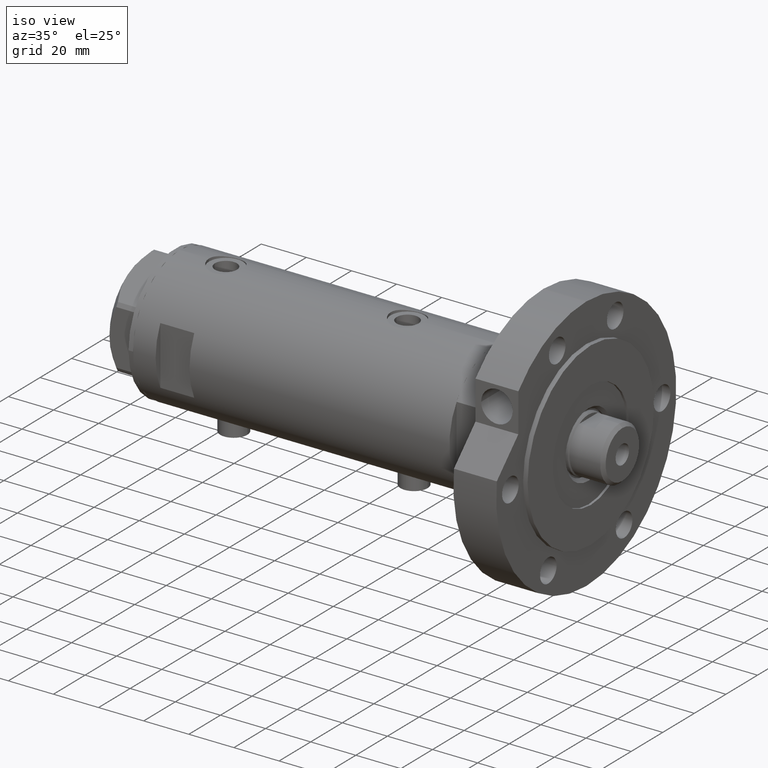
[diagram: clean part render]
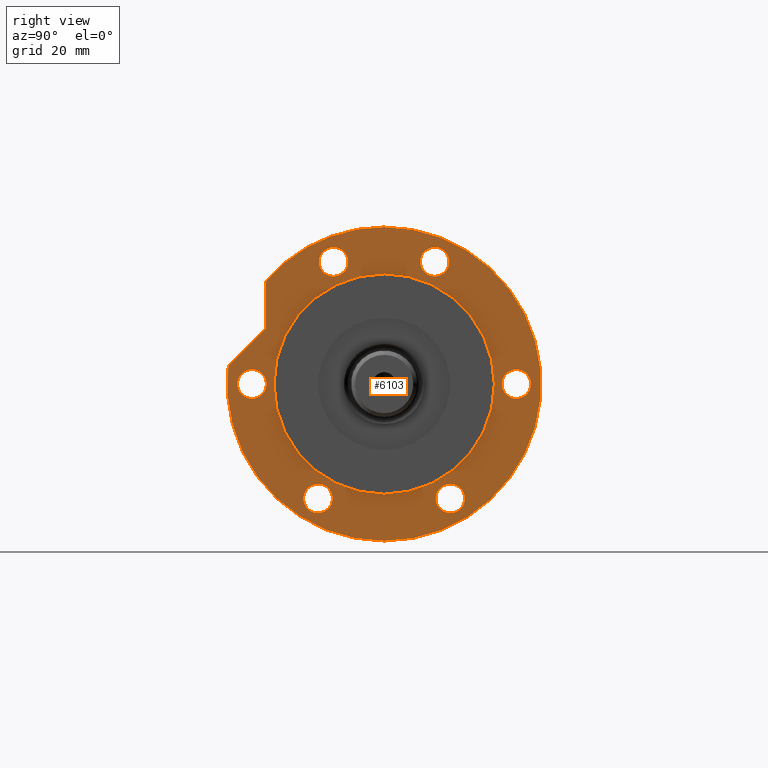
[diagram: tour spotlight — one face highlighted and labeled with its STEP entity id]
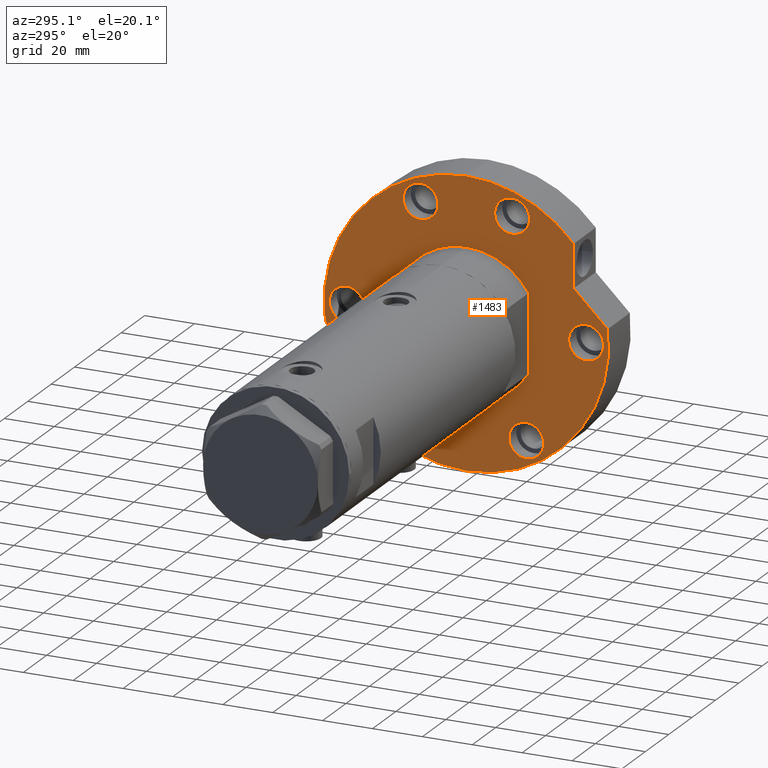
[diagram: tour spotlight — one face highlighted and labeled with its STEP entity id]
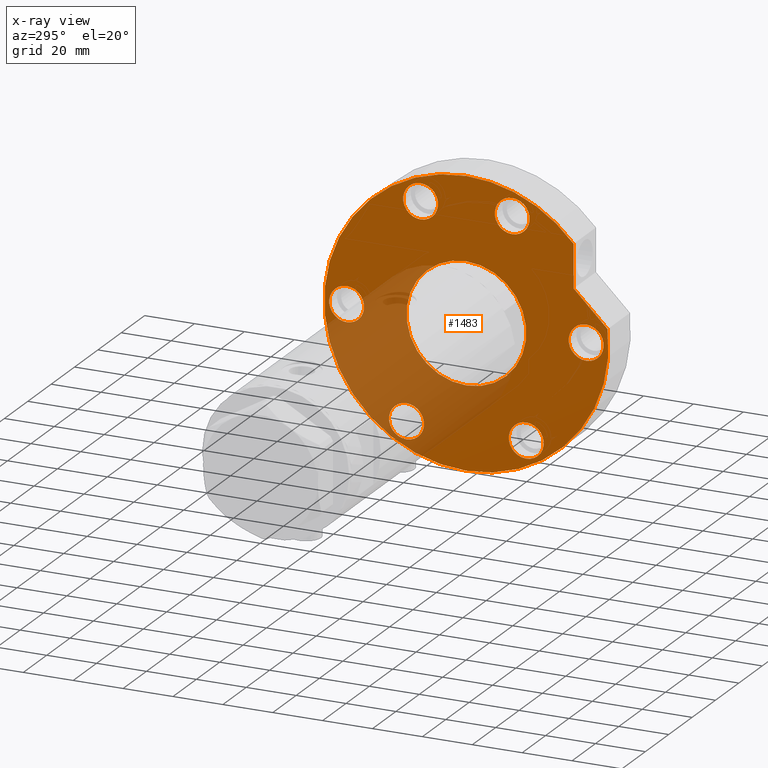
[diagram: x-ray of the same camera — body ghosted, this tour face saturated]
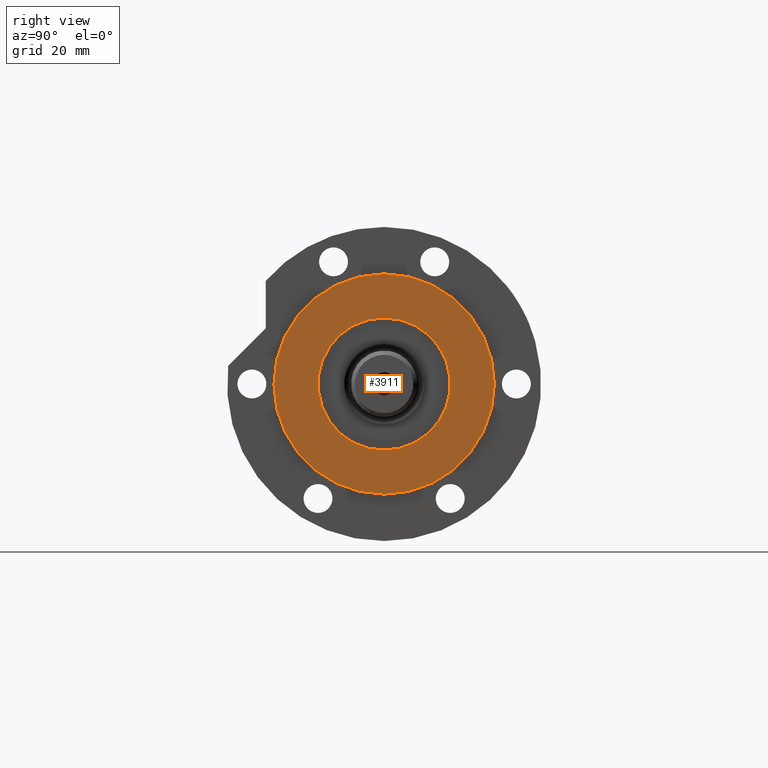
[diagram: tour spotlight — one face highlighted and labeled with its STEP entity id]
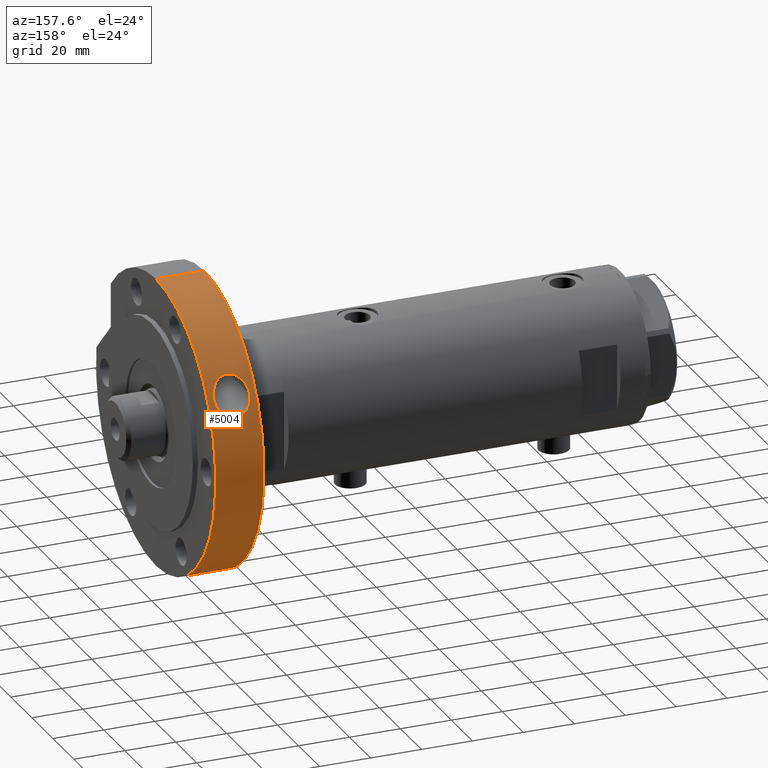
[diagram: tour spotlight — one face highlighted and labeled with its STEP entity id]
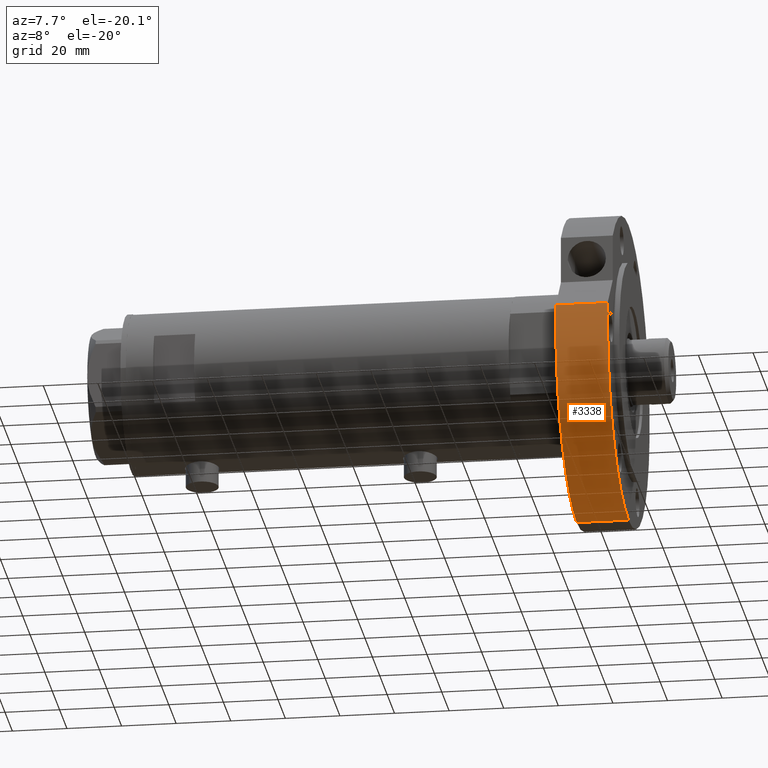
[diagram: tour spotlight — one face highlighted and labeled with its STEP entity id]
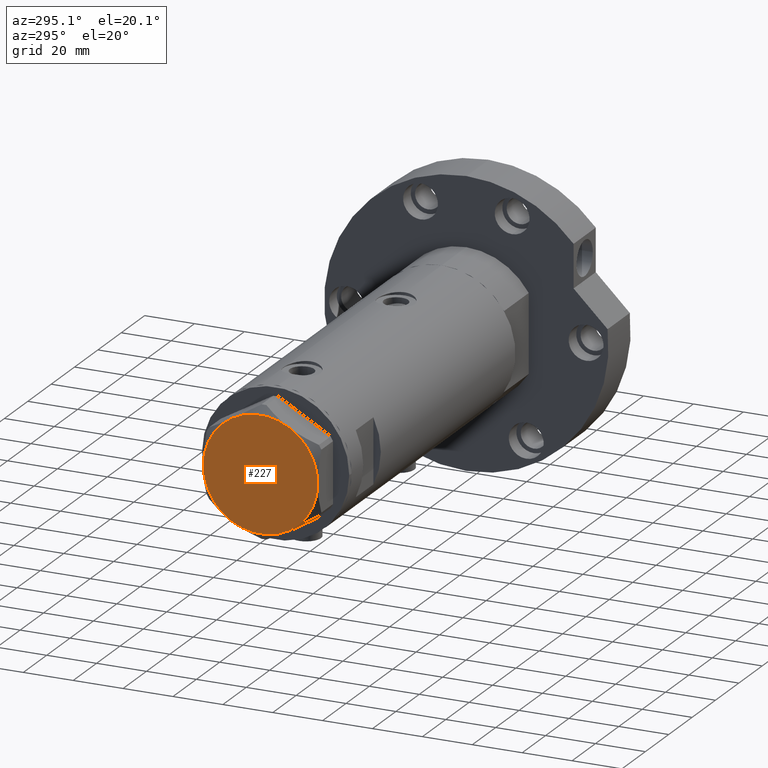
[diagram: tour spotlight — one face highlighted and labeled with its STEP entity id]
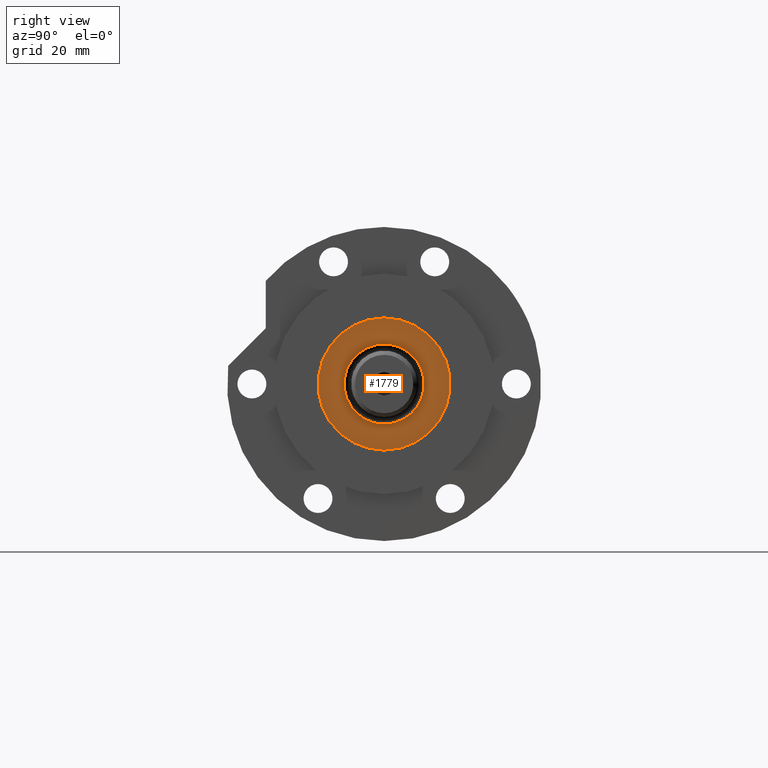
[diagram: tour spotlight — one face highlighted and labeled with its STEP entity id]
A machine part: a face-by-face anatomy tour. The part has 164 B-rep faces; the first image is the clean iso view, then the 7 largest visible faces are spotlighted one at a time (largest first), each with its STEP entity span.

Face 1 — right view, entity #6103. In plain terms, the highlighted planar face has unit normal (1, 0, -0).
Definition (entity closure, byte-faithful):
#67 = DIRECTION ( 'NONE',  ( 0.000000000000000000, 0.000000000000000000, 1.000000000000000000 ) ) ;
#69 = EDGE_LOOP ( 'NONE', ( #4774, #2917 ) ) ;
#122 = ORIENTED_EDGE ( 'NONE', *, *, #2874, .F. ) ;
#140 = DIRECTION ( 'NONE',  ( 1.000000000000000000, 0.000000000000000000, 0.000000000000000000 ) ) ;
#143 = CARTESIAN_POINT ( 'NONE',  ( -41.56921938165294961, -24.00000000000018829, 19.00000000000000000 ) ) ;
#146 = VERTEX_POINT ( 'NONE', #4113 ) ;
#152 = FACE_BOUND ( 'NONE', #69, .T. ) ;
#156 = AXIS2_PLACEMENT_3D ( 'NONE', #5712, #2893, #4749 ) ;
#240 = FACE_BOUND ( 'NONE', #2876, .T. ) ;
#255 = ORIENTED_EDGE ( 'NONE', *, *, #1008, .F. ) ;
#314 = EDGE_CURVE ( 'NONE', #2434, #4760, #4567, .T. ) ;
#325 = DIRECTION ( 'NONE',  ( 1.000000000000000000, 0.000000000000000000, 0.000000000000000000 ) ) ;
#393 = LINE ( 'NONE', #6117, #4806 ) ;
#422 = VERTEX_POINT ( 'NONE', #2413 ) ;
#452 = ORIENTED_EDGE ( 'NONE', *, *, #3189, .F. ) ;
#461 = CARTESIAN_POINT ( 'NONE',  ( -5.249999999999998224, 48.00000000000000000, 19.00000000000000000 ) ) ;
#462 = ORIENTED_EDGE ( 'NONE', *, *, #4198, .F. ) ;
#481 = CIRCLE ( 'NONE', #2062, 5.249999999999997335 ) ;
#485 = CARTESIAN_POINT ( 'NONE',  ( -46.81921938165310593, 23.99999999999990408, 19.00000000000000000 ) ) ;
#505 = VERTEX_POINT ( 'NONE', #2133 ) ;
#615 = DIRECTION ( 'NONE',  ( 1.000000000000000000, 0.000000000000000000, 0.000000000000000000 ) ) ;
#637 = VERTEX_POINT ( 'NONE', #5960 ) ;
#639 = AXIS2_PLACEMENT_3D ( 'NONE', #2675, #4548, #325 ) ;
#664 = DIRECTION ( 'NONE',  ( 0.000000000000000000, 0.000000000000000000, 1.000000000000000000 ) ) ;
#702 = DIRECTION ( 'NONE',  ( 0.000000000000000000, 0.000000000000000000, 1.000000000000000000 ) ) ;
#705 = ORIENTED_EDGE ( 'NONE', *, *, #1025, .F. ) ;
#710 = DIRECTION ( 'NONE',  ( 0.000000000000000000, 0.000000000000000000, 1.000000000000000000 ) ) ;
#722 = EDGE_CURVE ( 'NONE', #4558, #1204, #1715, .T. ) ;
#867 = DIRECTION ( 'NONE',  ( 1.000000000000000000, 0.000000000000000000, 0.000000000000000000 ) ) ;
#920 = DIRECTION ( 'NONE',  ( 1.000000000000000000, 0.000000000000000000, 0.000000000000000000 ) ) ;
#958 = AXIS2_PLACEMENT_3D ( 'NONE', #143, #2887, #5242 ) ;
#1008 = EDGE_CURVE ( 'NONE', #5145, #505, #5080, .T. ) ;
#1025 = EDGE_CURVE ( 'NONE', #637, #3402, #2123, .T. ) ;
#1034 = CIRCLE ( 'NONE', #4468, 5.249999999999998224 ) ;
#1087 = DIRECTION ( 'NONE',  ( 1.000000000000000000, 0.000000000000000000, -0.000000000000000000 ) ) ;
#1134 = EDGE_CURVE ( 'NONE', #6003, #1891, #1034, .T. ) ;
#1140 = AXIS2_PLACEMENT_3D ( 'NONE', #2778, #5093, #867 ) ;
#1170 = FACE_BOUND ( 'NONE', #4994, .T. ) ;
#1189 = DIRECTION ( 'NONE',  ( 0.000000000000000000, 0.000000000000000000, 1.000000000000000000 ) ) ;
#1204 = VERTEX_POINT ( 'NONE', #3913 ) ;
#1267 = CARTESIAN_POINT ( 'NONE',  ( 0.000000000000000000, -48.00000000000000000, 19.00000000000000000 ) ) ;
#1278 = AXIS2_PLACEMENT_3D ( 'NONE', #5423, #1189, #2603 ) ;
#1288 = ORIENTED_EDGE ( 'NONE', *, *, #1866, .T. ) ;
#1290 = DIRECTION ( 'NONE',  ( 1.000000000000000000, 0.000000000000000000, 0.000000000000000000 ) ) ;
#1373 = CARTESIAN_POINT ( 'NONE',  ( 6.569366352211361004, 56.62016801220598694, 19.00000000000000000 ) ) ;
#1389 = EDGE_LOOP ( 'NONE', ( #1541, #705 ) ) ;
#1481 = VERTEX_POINT ( 'NONE', #1373 ) ;
#1520 = DIRECTION ( 'NONE',  ( 1.000000000000000000, 0.000000000000000000, 0.000000000000000000 ) ) ;
#1541 = ORIENTED_EDGE ( 'NONE', *, *, #5138, .F. ) ;
#1578 = AXIS2_PLACEMENT_3D ( 'NONE', #5727, #2391, #3342 ) ;
#1603 = FACE_BOUND ( 'NONE', #5162, .T. ) ;
#1630 = CARTESIAN_POINT ( 'NONE',  ( -57.00000000000000000, 0.000000000000000000, 19.00000000000000000 ) ) ;
#1661 = PLANE ( 'NONE',  #2851 ) ;
#1697 = EDGE_LOOP ( 'NONE', ( #3644, #5657 ) ) ;
#1715 = CIRCLE ( 'NONE', #4085, 5.249999999999997335 ) ;
#1760 = DIRECTION ( 'NONE',  ( 0.000000000000000000, 0.000000000000000000, 1.000000000000000000 ) ) ;
#1817 = DIRECTION ( 'NONE',  ( 0.000000000000000000, 0.000000000000000000, 1.000000000000000000 ) ) ;
#1825 = EDGE_CURVE ( 'NONE', #3164, #422, #2235, .T. ) ;
#1832 = EDGE_CURVE ( 'NONE', #4288, #5533, #2620, .T. ) ;
#1844 = CARTESIAN_POINT ( 'NONE',  ( 44.34621756054168173, 18.36880475352450048, 19.00000000000000000 ) ) ;
#1866 = EDGE_CURVE ( 'NONE', #1481, #3158, #4197, .T. ) ;
#1884 = DIRECTION ( 'NONE',  ( 0.000000000000000000, 0.000000000000000000, 1.000000000000000000 ) ) ;
#1891 = VERTEX_POINT ( 'NONE', #6035 ) ;
#1906 = ORIENTED_EDGE ( 'NONE', *, *, #3568, .F. ) ;
#2051 = CIRCLE ( 'NONE', #958, 5.249999999999997335 ) ;
#2062 = AXIS2_PLACEMENT_3D ( 'NONE', #4156, #6047, #4709 ) ;
#2067 = EDGE_CURVE ( 'NONE', #1891, #6003, #4386, .T. ) ;
#2091 = LINE ( 'NONE', #5853, #2269 ) ;
#2123 = CIRCLE ( 'NONE', #5580, 5.249999999999997335 ) ;
#2133 = CARTESIAN_POINT ( 'NONE',  ( -40.00000000000000000, 0.000000000000000000, 19.00000000000000000 ) ) ;
#2149 = ORIENTED_EDGE ( 'NONE', *, *, #1832, .F. ) ;
#2235 = CIRCLE ( 'NONE', #1140, 57.00000000000000000 ) ;
#2269 = VECTOR ( 'NONE', #3497, 1000.000000000000000 ) ;
#2387 = CARTESIAN_POINT ( 'NONE',  ( -41.56921938165310593, 23.99999999999990408, 19.00000000000000000 ) ) ;
#2391 = DIRECTION ( 'NONE',  ( 0.000000000000000000, 0.000000000000000000, 1.000000000000000000 ) ) ;
#2408 = ORIENTED_EDGE ( 'NONE', *, *, #3654, .F. ) ;
#2413 = CARTESIAN_POINT ( 'NONE',  ( 37.43945616129992970, 42.98007820311755012, 19.00000000000000000 ) ) ;
#2434 = VERTEX_POINT ( 'NONE', #3290 ) ;
#2480 = CARTESIAN_POINT ( 'NONE',  ( 0.000000000000000000, 0.000000000000000000, 19.00000000000000000 ) ) ;
#2549 = ORIENTED_EDGE ( 'NONE', *, *, #5534, .T. ) ;
#2603 = DIRECTION ( 'NONE',  ( 1.000000000000000000, 0.000000000000000000, 0.000000000000000000 ) ) ;
#2620 = CIRCLE ( 'NONE', #3405, 5.249999999999998224 ) ;
#2675 = CARTESIAN_POINT ( 'NONE',  ( 0.000000000000000000, 0.000000000000000000, 19.00000000000000000 ) ) ;
#2778 = CARTESIAN_POINT ( 'NONE',  ( 0.000000000000000000, 0.000000000000000000, 19.00000000000000000 ) ) ;
#2833 = DIRECTION ( 'NONE',  ( 0.000000000000000000, 0.000000000000000000, 1.000000000000000000 ) ) ;
#2851 = AXIS2_PLACEMENT_3D ( 'NONE', #2958, #3484, #1087 ) ;
#2874 = EDGE_CURVE ( 'NONE', #5533, #4288, #3222, .T. ) ;
#2876 = EDGE_LOOP ( 'NONE', ( #462, #2408 ) ) ;
#2887 = DIRECTION ( 'NONE',  ( 0.000000000000000000, 0.000000000000000000, 1.000000000000000000 ) ) ;
#2893 = DIRECTION ( 'NONE',  ( 0.000000000000000000, 0.000000000000000000, 1.000000000000000000 ) ) ;
#2917 = ORIENTED_EDGE ( 'NONE', *, *, #314, .F. ) ;
#2958 = CARTESIAN_POINT ( 'NONE',  ( 0.000000000000000000, 0.000000000000000000, 19.00000000000000000 ) ) ;
#2988 = FACE_BOUND ( 'NONE', #1697, .T. ) ;
#3013 = ORIENTED_EDGE ( 'NONE', *, *, #4992, .F. ) ;
#3062 = DIRECTION ( 'NONE',  ( 0.000000000000000000, 0.000000000000000000, 1.000000000000000000 ) ) ;
#3138 = ORIENTED_EDGE ( 'NONE', *, *, #1825, .T. ) ;
#3158 = VERTEX_POINT ( 'NONE', #1630 ) ;
#3164 = VERTEX_POINT ( 'NONE', #4821 ) ;
#3189 = EDGE_CURVE ( 'NONE', #505, #5145, #5301, .T. ) ;
#3201 = AXIS2_PLACEMENT_3D ( 'NONE', #2387, #1884, #1520 ) ;
#3222 = CIRCLE ( 'NONE', #4204, 5.249999999999998224 ) ;
#3254 = CARTESIAN_POINT ( 'NONE',  ( -5.249999999999998224, -48.00000000000000000, 19.00000000000000000 ) ) ;
#3290 = CARTESIAN_POINT ( 'NONE',  ( -36.31921938165311303, 23.99999999999990408, 19.00000000000000000 ) ) ;
#3342 = DIRECTION ( 'NONE',  ( 1.000000000000000000, 0.000000000000000000, 0.000000000000000000 ) ) ;
#3375 = CARTESIAN_POINT ( 'NONE',  ( 0.000000000000000000, -48.00000000000000000, 19.00000000000000000 ) ) ;
#3402 = VERTEX_POINT ( 'NONE', #4942 ) ;
#3405 = AXIS2_PLACEMENT_3D ( 'NONE', #1267, #1817, #4196 ) ;
#3438 = DIRECTION ( 'NONE',  ( 1.000000000000000000, 0.000000000000000000, 0.000000000000000000 ) ) ;
#3484 = DIRECTION ( 'NONE',  ( 0.000000000000000000, 0.000000000000000000, 1.000000000000000000 ) ) ;
#3497 = DIRECTION ( 'NONE',  ( 1.000000000000000000, 0.000000000000000000, -0.000000000000000000 ) ) ;
#3538 = CIRCLE ( 'NONE', #1578, 57.00000000000000000 ) ;
#3568 = EDGE_CURVE ( 'NONE', #1481, #146, #393, .T. ) ;
#3644 = ORIENTED_EDGE ( 'NONE', *, *, #1134, .F. ) ;
#3650 = DIRECTION ( 'NONE',  ( 1.000000000000000000, 0.000000000000000000, 0.000000000000000000 ) ) ;
#3654 = EDGE_CURVE ( 'NONE', #4274, #4130, #2051, .T. ) ;
#3756 = DIRECTION ( 'NONE',  ( 0.7071067811865510144, -0.7071067811865441310, 0.000000000000000000 ) ) ;
#3913 = CARTESIAN_POINT ( 'NONE',  ( 39.09621756054168173, 18.36880475352450048, 19.00000000000000000 ) ) ;
#3924 = FACE_BOUND ( 'NONE', #6048, .T. ) ;
#4009 = EDGE_LOOP ( 'NONE', ( #4896, #1906, #1288, #2549, #3138 ) ) ;
#4024 = DIRECTION ( 'NONE',  ( 1.000000000000000000, 0.000000000000000000, 0.000000000000000000 ) ) ;
#4031 = AXIS2_PLACEMENT_3D ( 'NONE', #4935, #702, #4065 ) ;
#4065 = DIRECTION ( 'NONE',  ( 1.000000000000000000, 0.000000000000000000, 0.000000000000000000 ) ) ;
#4085 = AXIS2_PLACEMENT_3D ( 'NONE', #1844, #2833, #920 ) ;
#4113 = CARTESIAN_POINT ( 'NONE',  ( 20.20945616129993283, 42.98007820311755012, 19.00000000000000000 ) ) ;
#4130 = VERTEX_POINT ( 'NONE', #5387 ) ;
#4156 = CARTESIAN_POINT ( 'NONE',  ( 44.34621756054168173, -18.36880475352450048, 19.00000000000000000 ) ) ;
#4196 = DIRECTION ( 'NONE',  ( 1.000000000000000000, 0.000000000000000000, 0.000000000000000000 ) ) ;
#4197 = CIRCLE ( 'NONE', #5977, 57.00000000000000000 ) ;
#4198 = EDGE_CURVE ( 'NONE', #4130, #4274, #5204, .T. ) ;
#4204 = AXIS2_PLACEMENT_3D ( 'NONE', #3375, #67, #3438 ) ;
#4274 = VERTEX_POINT ( 'NONE', #5602 ) ;
#4288 = VERTEX_POINT ( 'NONE', #3254 ) ;
#4360 = CARTESIAN_POINT ( 'NONE',  ( 0.000000000000000000, 48.00000000000000000, 19.00000000000000000 ) ) ;
#4386 = CIRCLE ( 'NONE', #156, 5.249999999999998224 ) ;
#4468 = AXIS2_PLACEMENT_3D ( 'NONE', #4360, #664, #140 ) ;
#4471 = CARTESIAN_POINT ( 'NONE',  ( -41.56921938165294961, -24.00000000000018829, 19.00000000000000000 ) ) ;
#4548 = DIRECTION ( 'NONE',  ( 0.000000000000000000, 0.000000000000000000, 1.000000000000000000 ) ) ;
#4558 = VERTEX_POINT ( 'NONE', #5871 ) ;
#4567 = CIRCLE ( 'NONE', #3201, 5.249999999999997335 ) ;
#4676 = CARTESIAN_POINT ( 'NONE',  ( 40.00000000000000000, 4.898587196589413026E-15, 19.00000000000000000 ) ) ;
#4709 = DIRECTION ( 'NONE',  ( 1.000000000000000000, 0.000000000000000000, 0.000000000000000000 ) ) ;
#4723 = CIRCLE ( 'NONE', #1278, 5.249999999999997335 ) ;
#4749 = DIRECTION ( 'NONE',  ( 1.000000000000000000, 0.000000000000000000, 0.000000000000000000 ) ) ;
#4757 = CARTESIAN_POINT ( 'NONE',  ( 5.249999999999998224, -48.00000000000000000, 19.00000000000000000 ) ) ;
#4760 = VERTEX_POINT ( 'NONE', #485 ) ;
#4774 = ORIENTED_EDGE ( 'NONE', *, *, #5302, .F. ) ;
#4806 = VECTOR ( 'NONE', #3756, 999.9999999999998863 ) ;
#4821 = CARTESIAN_POINT ( 'NONE',  ( 57.00000000000000000, 6.980486755139912911E-15, 19.00000000000000000 ) ) ;
#4896 = ORIENTED_EDGE ( 'NONE', *, *, #5268, .F. ) ;
#4935 = CARTESIAN_POINT ( 'NONE',  ( 44.34621756054168173, 18.36880475352450048, 19.00000000000000000 ) ) ;
#4942 = CARTESIAN_POINT ( 'NONE',  ( 39.09621756054168173, -18.36880475352450048, 19.00000000000000000 ) ) ;
#4992 = EDGE_CURVE ( 'NONE', #1204, #4558, #6010, .T. ) ;
#4994 = EDGE_LOOP ( 'NONE', ( #2149, #122 ) ) ;
#5080 = CIRCLE ( 'NONE', #639, 40.00000000000000000 ) ;
#5093 = DIRECTION ( 'NONE',  ( 0.000000000000000000, 0.000000000000000000, 1.000000000000000000 ) ) ;
#5138 = EDGE_CURVE ( 'NONE', #3402, #637, #481, .T. ) ;
#5145 = VERTEX_POINT ( 'NONE', #4676 ) ;
#5162 = EDGE_LOOP ( 'NONE', ( #452, #255 ) ) ;
#5204 = CIRCLE ( 'NONE', #5701, 5.249999999999997335 ) ;
#5242 = DIRECTION ( 'NONE',  ( 1.000000000000000000, 0.000000000000000000, 0.000000000000000000 ) ) ;
#5247 = ORIENTED_EDGE ( 'NONE', *, *, #722, .F. ) ;
#5268 = EDGE_CURVE ( 'NONE', #146, #422, #2091, .T. ) ;
#5301 = CIRCLE ( 'NONE', #5601, 40.00000000000000000 ) ;
#5302 = EDGE_CURVE ( 'NONE', #4760, #2434, #4723, .T. ) ;
#5316 = FACE_OUTER_BOUND ( 'NONE', #4009, .T. ) ;
#5387 = CARTESIAN_POINT ( 'NONE',  ( -46.81921938165294961, -24.00000000000018829, 19.00000000000000000 ) ) ;
#5423 = CARTESIAN_POINT ( 'NONE',  ( -41.56921938165310593, 23.99999999999990408, 19.00000000000000000 ) ) ;
#5530 = DIRECTION ( 'NONE',  ( 0.000000000000000000, 0.000000000000000000, 1.000000000000000000 ) ) ;
#5533 = VERTEX_POINT ( 'NONE', #4757 ) ;
#5534 = EDGE_CURVE ( 'NONE', #3158, #3164, #3538, .T. ) ;
#5580 = AXIS2_PLACEMENT_3D ( 'NONE', #5987, #5530, #1290 ) ;
#5601 = AXIS2_PLACEMENT_3D ( 'NONE', #2480, #710, #615 ) ;
#5602 = CARTESIAN_POINT ( 'NONE',  ( -36.31921938165294961, -24.00000000000018829, 19.00000000000000000 ) ) ;
#5657 = ORIENTED_EDGE ( 'NONE', *, *, #2067, .F. ) ;
#5701 = AXIS2_PLACEMENT_3D ( 'NONE', #4471, #3062, #4024 ) ;
#5712 = CARTESIAN_POINT ( 'NONE',  ( 0.000000000000000000, 48.00000000000000000, 19.00000000000000000 ) ) ;
#5727 = CARTESIAN_POINT ( 'NONE',  ( 0.000000000000000000, 0.000000000000000000, 19.00000000000000000 ) ) ;
#5853 = CARTESIAN_POINT ( 'NONE',  ( 0.000000000000000000, 42.98007820311755012, 19.00000000000000000 ) ) ;
#5871 = CARTESIAN_POINT ( 'NONE',  ( 49.59621756054168173, 18.36880475352450048, 19.00000000000000000 ) ) ;
#5898 = FACE_BOUND ( 'NONE', #1389, .T. ) ;
#5960 = CARTESIAN_POINT ( 'NONE',  ( 49.59621756054168173, -18.36880475352450048, 19.00000000000000000 ) ) ;
#5977 = AXIS2_PLACEMENT_3D ( 'NONE', #6000, #1760, #3650 ) ;
#5987 = CARTESIAN_POINT ( 'NONE',  ( 44.34621756054168173, -18.36880475352450048, 19.00000000000000000 ) ) ;
#6000 = CARTESIAN_POINT ( 'NONE',  ( 0.000000000000000000, 0.000000000000000000, 19.00000000000000000 ) ) ;
#6003 = VERTEX_POINT ( 'NONE', #461 ) ;
#6010 = CIRCLE ( 'NONE', #4031, 5.249999999999997335 ) ;
#6035 = CARTESIAN_POINT ( 'NONE',  ( 5.249999999999998224, 48.00000000000000000, 19.00000000000000000 ) ) ;
#6047 = DIRECTION ( 'NONE',  ( 0.000000000000000000, 0.000000000000000000, 1.000000000000000000 ) ) ;
#6048 = EDGE_LOOP ( 'NONE', ( #3013, #5247 ) ) ;
#6103 = ADVANCED_FACE ( 'NONE', ( #2988, #3924, #5898, #1170, #240, #152, #5316, #1603 ), #1661, .T. ) ;
#6117 = CARTESIAN_POINT ( 'NONE',  ( 31.59476718220863845, 31.59476718220895108, 19.00000000000000000 ) ) ;

Face 2 — auxiliary view, entity #1483. An x-ray twin of the same camera follows (body ghosted, this face saturated) — the face is partly hidden behind the body. In plain terms, the highlighted planar face has unit normal (1, 0, -0).
Definition (entity closure, byte-faithful):
#33 = CARTESIAN_POINT ( 'NONE',  ( 0.000000000000000000, 0.000000000000000000, 0.000000000000000000 ) ) ;
#126 = EDGE_CURVE ( 'NONE', #5867, #5683, #5762, .T. ) ;
#155 = CARTESIAN_POINT ( 'NONE',  ( -57.00000000000000000, 0.000000000000000000, 0.000000000000000000 ) ) ;
#179 = ORIENTED_EDGE ( 'NONE', *, *, #2654, .T. ) ;
#210 = CARTESIAN_POINT ( 'NONE',  ( 20.20945616129993283, 42.98007820311755012, 0.000000000000000000 ) ) ;
#271 = ORIENTED_EDGE ( 'NONE', *, *, #5792, .F. ) ;
#307 = CARTESIAN_POINT ( 'NONE',  ( 51.34621756054168173, -18.36880475352450048, 0.000000000000000000 ) ) ;
#339 = CIRCLE ( 'NONE', #3795, 24.00000000000000355 ) ;
#364 = AXIS2_PLACEMENT_3D ( 'NONE', #2255, #5058, #5617 ) ;
#370 = DIRECTION ( 'NONE',  ( -1.000000000000000000, 0.000000000000000000, 0.000000000000000000 ) ) ;
#380 = PLANE ( 'NONE',  #3212 ) ;
#410 = FACE_BOUND ( 'NONE', #3529, .T. ) ;
#434 = DIRECTION ( 'NONE',  ( 0.000000000000000000, 0.000000000000000000, -1.000000000000000000 ) ) ;
#444 = AXIS2_PLACEMENT_3D ( 'NONE', #33, #3715, #5132 ) ;
#472 = FACE_BOUND ( 'NONE', #2771, .T. ) ;
#478 = DIRECTION ( 'NONE',  ( 0.000000000000000000, 0.000000000000000000, 1.000000000000000000 ) ) ;
#501 = ORIENTED_EDGE ( 'NONE', *, *, #2814, .F. ) ;
#514 = VERTEX_POINT ( 'NONE', #2538 ) ;
#524 = ORIENTED_EDGE ( 'NONE', *, *, #1629, .F. ) ;
#544 = VERTEX_POINT ( 'NONE', #616 ) ;
#545 = CIRCLE ( 'NONE', #444, 57.00000000000000000 ) ;
#547 = VERTEX_POINT ( 'NONE', #155 ) ;
#616 = CARTESIAN_POINT ( 'NONE',  ( 6.999999999999999112, -48.00000000000000000, 0.000000000000000000 ) ) ;
#623 = CARTESIAN_POINT ( 'NONE',  ( 44.34621756054168173, 18.36880475352450048, 0.000000000000000000 ) ) ;
#641 = CARTESIAN_POINT ( 'NONE',  ( 51.34621756054168173, 18.36880475352450048, 0.000000000000000000 ) ) ;
#648 = AXIS2_PLACEMENT_3D ( 'NONE', #1514, #1047, #1878 ) ;
#667 = CIRCLE ( 'NONE', #1066, 6.999999999999999112 ) ;
#683 = VERTEX_POINT ( 'NONE', #5933 ) ;
#685 = AXIS2_PLACEMENT_3D ( 'NONE', #4077, #434, #5474 ) ;
#723 = ORIENTED_EDGE ( 'NONE', *, *, #4054, .F. ) ;
#810 = VERTEX_POINT ( 'NONE', #4278 ) ;
#844 = VECTOR ( 'NONE', #2125, 999.9999999999998863 ) ;
#892 = VERTEX_POINT ( 'NONE', #641 ) ;
#927 = EDGE_CURVE ( 'NONE', #514, #1183, #4432, .T. ) ;
#937 = CARTESIAN_POINT ( 'NONE',  ( -41.56921938165294961, -24.00000000000018829, 0.000000000000000000 ) ) ;
#939 = CARTESIAN_POINT ( 'NONE',  ( 0.000000000000000000, 0.000000000000000000, 0.000000000000000000 ) ) ;
#969 = FACE_BOUND ( 'NONE', #1894, .T. ) ;
#984 = ORIENTED_EDGE ( 'NONE', *, *, #3901, .F. ) ;
#1047 = DIRECTION ( 'NONE',  ( 0.000000000000000000, 0.000000000000000000, 1.000000000000000000 ) ) ;
#1054 = CIRCLE ( 'NONE', #5788, 6.999999999999999112 ) ;
#1066 = AXIS2_PLACEMENT_3D ( 'NONE', #5828, #3133, #3009 ) ;
#1149 = DIRECTION ( 'NONE',  ( -1.000000000000000000, 0.000000000000000000, 0.000000000000000000 ) ) ;
#1156 = CARTESIAN_POINT ( 'NONE',  ( -48.56921938165294961, -24.00000000000018829, 0.000000000000000000 ) ) ;
#1183 = VERTEX_POINT ( 'NONE', #3412 ) ;
#1190 = EDGE_CURVE ( 'NONE', #1713, #3695, #339, .T. ) ;
#1210 = VERTEX_POINT ( 'NONE', #1156 ) ;
#1237 = AXIS2_PLACEMENT_3D ( 'NONE', #623, #3551, #5901 ) ;
#1244 = CIRCLE ( 'NONE', #4389, 24.00000000000000355 ) ;
#1365 = CIRCLE ( 'NONE', #2257, 6.999999999999999112 ) ;
#1418 = AXIS2_PLACEMENT_3D ( 'NONE', #5098, #3616, #4078 ) ;
#1432 = CIRCLE ( 'NONE', #3900, 6.999999999999999112 ) ;
#1458 = EDGE_LOOP ( 'NONE', ( #501, #1812 ) ) ;
#1483 = ADVANCED_FACE ( 'NONE', ( #410, #3313, #4609, #969, #2337, #472, #2300, #5634 ), #380, .F. ) ;
#1504 = DIRECTION ( 'NONE',  ( 0.000000000000000000, 0.000000000000000000, 1.000000000000000000 ) ) ;
#1506 = CARTESIAN_POINT ( 'NONE',  ( -24.00000000000000355, 2.939152317953648289E-15, 0.000000000000000000 ) ) ;
#1514 = CARTESIAN_POINT ( 'NONE',  ( 0.000000000000000000, 0.000000000000000000, 0.000000000000000000 ) ) ;
#1536 = EDGE_CURVE ( 'NONE', #547, #5232, #545, .T. ) ;
#1576 = DIRECTION ( 'NONE',  ( 0.000000000000000000, 0.000000000000000000, -1.000000000000000000 ) ) ;
#1605 = EDGE_CURVE ( 'NONE', #544, #5307, #1432, .T. ) ;
#1629 = EDGE_CURVE ( 'NONE', #5823, #892, #5674, .T. ) ;
#1644 = ORIENTED_EDGE ( 'NONE', *, *, #1190, .T. ) ;
#1713 = VERTEX_POINT ( 'NONE', #4355 ) ;
#1812 = ORIENTED_EDGE ( 'NONE', *, *, #4690, .F. ) ;
#1822 = CARTESIAN_POINT ( 'NONE',  ( 44.34621756054168173, 18.36880475352450048, 0.000000000000000000 ) ) ;
#1878 = DIRECTION ( 'NONE',  ( 1.000000000000000000, 0.000000000000000000, 0.000000000000000000 ) ) ;
#1894 = EDGE_LOOP ( 'NONE', ( #4138, #5078 ) ) ;
#1899 = EDGE_LOOP ( 'NONE', ( #1644, #179 ) ) ;
#1937 = ORIENTED_EDGE ( 'NONE', *, *, #2058, .F. ) ;
#1958 = CIRCLE ( 'NONE', #685, 6.999999999999999112 ) ;
#2035 = CIRCLE ( 'NONE', #648, 57.00000000000000000 ) ;
#2053 = DIRECTION ( 'NONE',  ( 0.000000000000000000, 0.000000000000000000, -1.000000000000000000 ) ) ;
#2056 = EDGE_LOOP ( 'NONE', ( #524, #5195 ) ) ;
#2058 = EDGE_CURVE ( 'NONE', #5232, #3241, #2035, .T. ) ;
#2080 = ORIENTED_EDGE ( 'NONE', *, *, #2953, .F. ) ;
#2125 = DIRECTION ( 'NONE',  ( 0.7071067811865510144, -0.7071067811865441310, -0.000000000000000000 ) ) ;
#2221 = ORIENTED_EDGE ( 'NONE', *, *, #2776, .T. ) ;
#2255 = CARTESIAN_POINT ( 'NONE',  ( -41.56921938165310593, 23.99999999999990408, 0.000000000000000000 ) ) ;
#2257 = AXIS2_PLACEMENT_3D ( 'NONE', #4560, #3213, #370 ) ;
#2276 = DIRECTION ( 'NONE',  ( 1.000000000000000000, 0.000000000000000000, -0.000000000000000000 ) ) ;
#2281 = EDGE_CURVE ( 'NONE', #5307, #544, #6084, .T. ) ;
#2300 = FACE_BOUND ( 'NONE', #1899, .T. ) ;
#2301 = DIRECTION ( 'NONE',  ( 1.000000000000000000, 0.000000000000000000, 0.000000000000000000 ) ) ;
#2337 = FACE_BOUND ( 'NONE', #1458, .T. ) ;
#2423 = DIRECTION ( 'NONE',  ( 0.000000000000000000, 0.000000000000000000, -1.000000000000000000 ) ) ;
#2538 = CARTESIAN_POINT ( 'NONE',  ( 6.569366352211361004, 56.62016801220598694, 0.000000000000000000 ) ) ;
#2562 = VERTEX_POINT ( 'NONE', #4361 ) ;
#2654 = EDGE_CURVE ( 'NONE', #3695, #1713, #1244, .T. ) ;
#2700 = EDGE_LOOP ( 'NONE', ( #5264, #271 ) ) ;
#2715 = DIRECTION ( 'NONE',  ( -1.000000000000000000, 0.000000000000000000, 0.000000000000000000 ) ) ;
#2771 = EDGE_LOOP ( 'NONE', ( #984, #4088 ) ) ;
#2776 = EDGE_CURVE ( 'NONE', #1183, #3241, #3746, .T. ) ;
#2814 = EDGE_CURVE ( 'NONE', #1210, #810, #1054, .T. ) ;
#2854 = DIRECTION ( 'NONE',  ( 1.000000000000000000, 0.000000000000000000, 0.000000000000000000 ) ) ;
#2913 = CARTESIAN_POINT ( 'NONE',  ( 0.000000000000000000, 0.000000000000000000, 0.000000000000000000 ) ) ;
#2916 = AXIS2_PLACEMENT_3D ( 'NONE', #4941, #1576, #3075 ) ;
#2953 = EDGE_CURVE ( 'NONE', #2562, #4969, #3120, .T. ) ;
#2977 = CARTESIAN_POINT ( 'NONE',  ( -34.56921938165311303, 23.99999999999990408, 0.000000000000000000 ) ) ;
#3008 = DIRECTION ( 'NONE',  ( 0.000000000000000000, 0.000000000000000000, 1.000000000000000000 ) ) ;
#3009 = DIRECTION ( 'NONE',  ( -1.000000000000000000, 0.000000000000000000, 0.000000000000000000 ) ) ;
#3023 = CIRCLE ( 'NONE', #364, 6.999999999999999112 ) ;
#3028 = CIRCLE ( 'NONE', #3721, 57.00000000000000000 ) ;
#3075 = DIRECTION ( 'NONE',  ( -1.000000000000000000, 0.000000000000000000, 0.000000000000000000 ) ) ;
#3120 = CIRCLE ( 'NONE', #4394, 6.999999999999999112 ) ;
#3133 = DIRECTION ( 'NONE',  ( 0.000000000000000000, 0.000000000000000000, -1.000000000000000000 ) ) ;
#3161 = CARTESIAN_POINT ( 'NONE',  ( -6.999999999999999112, -48.00000000000000000, 0.000000000000000000 ) ) ;
#3178 = ORIENTED_EDGE ( 'NONE', *, *, #4093, .F. ) ;
#3212 = AXIS2_PLACEMENT_3D ( 'NONE', #4210, #5159, #2276 ) ;
#3213 = DIRECTION ( 'NONE',  ( 0.000000000000000000, 0.000000000000000000, -1.000000000000000000 ) ) ;
#3224 = DIRECTION ( 'NONE',  ( -1.000000000000000000, 0.000000000000000000, 0.000000000000000000 ) ) ;
#3241 = VERTEX_POINT ( 'NONE', #4314 ) ;
#3313 = FACE_BOUND ( 'NONE', #2056, .T. ) ;
#3344 = ORIENTED_EDGE ( 'NONE', *, *, #1536, .F. ) ;
#3406 = DIRECTION ( 'NONE',  ( -1.000000000000000000, 0.000000000000000000, 0.000000000000000000 ) ) ;
#3412 = CARTESIAN_POINT ( 'NONE',  ( 20.20945616129993283, 42.98007820311755012, 0.000000000000000000 ) ) ;
#3429 = AXIS2_PLACEMENT_3D ( 'NONE', #3879, #5237, #3406 ) ;
#3529 = EDGE_LOOP ( 'NONE', ( #2080, #3178 ) ) ;
#3545 = AXIS2_PLACEMENT_3D ( 'NONE', #1822, #5965, #2715 ) ;
#3551 = DIRECTION ( 'NONE',  ( 0.000000000000000000, 0.000000000000000000, -1.000000000000000000 ) ) ;
#3562 = EDGE_CURVE ( 'NONE', #3747, #683, #3023, .T. ) ;
#3616 = DIRECTION ( 'NONE',  ( 0.000000000000000000, 0.000000000000000000, -1.000000000000000000 ) ) ;
#3695 = VERTEX_POINT ( 'NONE', #1506 ) ;
#3715 = DIRECTION ( 'NONE',  ( 0.000000000000000000, 0.000000000000000000, 1.000000000000000000 ) ) ;
#3721 = AXIS2_PLACEMENT_3D ( 'NONE', #939, #478, #2854 ) ;
#3735 = CARTESIAN_POINT ( 'NONE',  ( 37.34621756054168173, -18.36880475352450048, 0.000000000000000000 ) ) ;
#3746 = LINE ( 'NONE', #5106, #4599 ) ;
#3747 = VERTEX_POINT ( 'NONE', #2977 ) ;
#3795 = AXIS2_PLACEMENT_3D ( 'NONE', #3854, #1504, #5299 ) ;
#3854 = CARTESIAN_POINT ( 'NONE',  ( 0.000000000000000000, 0.000000000000000000, 0.000000000000000000 ) ) ;
#3879 = CARTESIAN_POINT ( 'NONE',  ( 0.000000000000000000, 48.00000000000000000, 0.000000000000000000 ) ) ;
#3900 = AXIS2_PLACEMENT_3D ( 'NONE', #5787, #4832, #5934 ) ;
#3901 = EDGE_CURVE ( 'NONE', #683, #3747, #667, .T. ) ;
#4054 = EDGE_CURVE ( 'NONE', #514, #547, #3028, .T. ) ;
#4077 = CARTESIAN_POINT ( 'NONE',  ( 44.34621756054168173, -18.36880475352450048, 0.000000000000000000 ) ) ;
#4078 = DIRECTION ( 'NONE',  ( -1.000000000000000000, 0.000000000000000000, 0.000000000000000000 ) ) ;
#4088 = ORIENTED_EDGE ( 'NONE', *, *, #3562, .F. ) ;
#4093 = EDGE_CURVE ( 'NONE', #4969, #2562, #6101, .T. ) ;
#4138 = ORIENTED_EDGE ( 'NONE', *, *, #2281, .F. ) ;
#4190 = EDGE_LOOP ( 'NONE', ( #6050, #2221, #1937, #3344, #723 ) ) ;
#4210 = CARTESIAN_POINT ( 'NONE',  ( 0.000000000000000000, 0.000000000000000000, 0.000000000000000000 ) ) ;
#4278 = CARTESIAN_POINT ( 'NONE',  ( -34.56921938165294961, -24.00000000000018829, 0.000000000000000000 ) ) ;
#4314 = CARTESIAN_POINT ( 'NONE',  ( 37.43945616129992970, 42.98007820311755012, 0.000000000000000000 ) ) ;
#4355 = CARTESIAN_POINT ( 'NONE',  ( 24.00000000000000355, 0.000000000000000000, 0.000000000000000000 ) ) ;
#4361 = CARTESIAN_POINT ( 'NONE',  ( -6.999999999999999112, 48.00000000000000000, 0.000000000000000000 ) ) ;
#4389 = AXIS2_PLACEMENT_3D ( 'NONE', #2913, #3008, #4392 ) ;
#4392 = DIRECTION ( 'NONE',  ( 1.000000000000000000, 0.000000000000000000, 0.000000000000000000 ) ) ;
#4394 = AXIS2_PLACEMENT_3D ( 'NONE', #4922, #2053, #1149 ) ;
#4432 = LINE ( 'NONE', #210, #844 ) ;
#4480 = CARTESIAN_POINT ( 'NONE',  ( 6.999999999999999112, 48.00000000000000000, 0.000000000000000000 ) ) ;
#4560 = CARTESIAN_POINT ( 'NONE',  ( -41.56921938165294961, -24.00000000000018829, 0.000000000000000000 ) ) ;
#4599 = VECTOR ( 'NONE', #2301, 1000.000000000000000 ) ;
#4609 = FACE_BOUND ( 'NONE', #2700, .T. ) ;
#4690 = EDGE_CURVE ( 'NONE', #810, #1210, #1365, .T. ) ;
#4832 = DIRECTION ( 'NONE',  ( 0.000000000000000000, 0.000000000000000000, -1.000000000000000000 ) ) ;
#4833 = CIRCLE ( 'NONE', #3545, 6.999999999999999112 ) ;
#4922 = CARTESIAN_POINT ( 'NONE',  ( 0.000000000000000000, 48.00000000000000000, 0.000000000000000000 ) ) ;
#4941 = CARTESIAN_POINT ( 'NONE',  ( 0.000000000000000000, -48.00000000000000000, 0.000000000000000000 ) ) ;
#4969 = VERTEX_POINT ( 'NONE', #4480 ) ;
#5058 = DIRECTION ( 'NONE',  ( 0.000000000000000000, 0.000000000000000000, -1.000000000000000000 ) ) ;
#5078 = ORIENTED_EDGE ( 'NONE', *, *, #1605, .F. ) ;
#5098 = CARTESIAN_POINT ( 'NONE',  ( 44.34621756054168173, -18.36880475352450048, 0.000000000000000000 ) ) ;
#5106 = CARTESIAN_POINT ( 'NONE',  ( 20.20945616129993283, 42.98007820311755012, 0.000000000000000000 ) ) ;
#5128 = CARTESIAN_POINT ( 'NONE',  ( 37.34621756054168173, 18.36880475352450048, 0.000000000000000000 ) ) ;
#5132 = DIRECTION ( 'NONE',  ( 1.000000000000000000, 0.000000000000000000, 0.000000000000000000 ) ) ;
#5159 = DIRECTION ( 'NONE',  ( 0.000000000000000000, 0.000000000000000000, 1.000000000000000000 ) ) ;
#5195 = ORIENTED_EDGE ( 'NONE', *, *, #5801, .F. ) ;
#5232 = VERTEX_POINT ( 'NONE', #5453 ) ;
#5237 = DIRECTION ( 'NONE',  ( 0.000000000000000000, 0.000000000000000000, -1.000000000000000000 ) ) ;
#5264 = ORIENTED_EDGE ( 'NONE', *, *, #126, .F. ) ;
#5299 = DIRECTION ( 'NONE',  ( 1.000000000000000000, 0.000000000000000000, 0.000000000000000000 ) ) ;
#5307 = VERTEX_POINT ( 'NONE', #3161 ) ;
#5453 = CARTESIAN_POINT ( 'NONE',  ( 57.00000000000000000, 6.980486755139912911E-15, 0.000000000000000000 ) ) ;
#5474 = DIRECTION ( 'NONE',  ( -1.000000000000000000, 0.000000000000000000, 0.000000000000000000 ) ) ;
#5617 = DIRECTION ( 'NONE',  ( -1.000000000000000000, 0.000000000000000000, 0.000000000000000000 ) ) ;
#5634 = FACE_OUTER_BOUND ( 'NONE', #4190, .T. ) ;
#5674 = CIRCLE ( 'NONE', #1237, 6.999999999999999112 ) ;
#5683 = VERTEX_POINT ( 'NONE', #307 ) ;
#5762 = CIRCLE ( 'NONE', #1418, 6.999999999999999112 ) ;
#5787 = CARTESIAN_POINT ( 'NONE',  ( 0.000000000000000000, -48.00000000000000000, 0.000000000000000000 ) ) ;
#5788 = AXIS2_PLACEMENT_3D ( 'NONE', #937, #2423, #3224 ) ;
#5792 = EDGE_CURVE ( 'NONE', #5683, #5867, #1958, .T. ) ;
#5801 = EDGE_CURVE ( 'NONE', #892, #5823, #4833, .T. ) ;
#5823 = VERTEX_POINT ( 'NONE', #5128 ) ;
#5828 = CARTESIAN_POINT ( 'NONE',  ( -41.56921938165310593, 23.99999999999990408, 0.000000000000000000 ) ) ;
#5867 = VERTEX_POINT ( 'NONE', #3735 ) ;
#5901 = DIRECTION ( 'NONE',  ( -1.000000000000000000, 0.000000000000000000, 0.000000000000000000 ) ) ;
#5933 = CARTESIAN_POINT ( 'NONE',  ( -48.56921938165310593, 23.99999999999990408, 0.000000000000000000 ) ) ;
#5934 = DIRECTION ( 'NONE',  ( -1.000000000000000000, 0.000000000000000000, 0.000000000000000000 ) ) ;
#5965 = DIRECTION ( 'NONE',  ( 0.000000000000000000, 0.000000000000000000, -1.000000000000000000 ) ) ;
#6050 = ORIENTED_EDGE ( 'NONE', *, *, #927, .T. ) ;
#6084 = CIRCLE ( 'NONE', #2916, 6.999999999999999112 ) ;
#6101 = CIRCLE ( 'NONE', #3429, 6.999999999999999112 ) ;

Face 3 — right view, entity #3911. In plain terms, the highlighted planar face has unit normal (1, 0, -0).
Definition (entity closure, byte-faithful):
#32 = EDGE_LOOP ( 'NONE', ( #5591, #5718 ) ) ;
#165 = CARTESIAN_POINT ( 'NONE',  ( -40.00000000000000000, 0.000000000000000000, 20.99999999999999645 ) ) ;
#177 = CARTESIAN_POINT ( 'NONE',  ( 0.000000000000000000, 0.000000000000000000, 20.99999999999999645 ) ) ;
#618 = EDGE_CURVE ( 'NONE', #2892, #2859, #930, .T. ) ;
#658 = CARTESIAN_POINT ( 'NONE',  ( -24.00000000000000355, 2.939152317953648289E-15, 20.99999999999999645 ) ) ;
#668 = DIRECTION ( 'NONE',  ( 0.000000000000000000, 0.000000000000000000, 1.000000000000000000 ) ) ;
#671 = VERTEX_POINT ( 'NONE', #3578 ) ;
#690 = CARTESIAN_POINT ( 'NONE',  ( 40.00000000000000000, 4.898587196589413026E-15, 20.99999999999999645 ) ) ;
#756 = DIRECTION ( 'NONE',  ( 1.000000000000000000, 0.000000000000000000, -0.000000000000000000 ) ) ;
#830 = DIRECTION ( 'NONE',  ( 1.000000000000000000, 0.000000000000000000, 0.000000000000000000 ) ) ;
#860 = CARTESIAN_POINT ( 'NONE',  ( 0.000000000000000000, 0.000000000000000000, 20.99999999999999645 ) ) ;
#864 = CIRCLE ( 'NONE', #4305, 40.00000000000000000 ) ;
#930 = CIRCLE ( 'NONE', #1225, 40.00000000000000000 ) ;
#1225 = AXIS2_PLACEMENT_3D ( 'NONE', #1297, #2229, #1357 ) ;
#1294 = ORIENTED_EDGE ( 'NONE', *, *, #3604, .T. ) ;
#1297 = CARTESIAN_POINT ( 'NONE',  ( 0.000000000000000000, 0.000000000000000000, 20.99999999999999645 ) ) ;
#1357 = DIRECTION ( 'NONE',  ( 1.000000000000000000, 0.000000000000000000, 0.000000000000000000 ) ) ;
#1359 = AXIS2_PLACEMENT_3D ( 'NONE', #177, #668, #756 ) ;
#1436 = AXIS2_PLACEMENT_3D ( 'NONE', #4661, #2684, #5540 ) ;
#1560 = EDGE_CURVE ( 'NONE', #671, #2982, #1725, .T. ) ;
#1594 = FACE_OUTER_BOUND ( 'NONE', #2191, .T. ) ;
#1725 = CIRCLE ( 'NONE', #4788, 24.00000000000000355 ) ;
#1858 = EDGE_CURVE ( 'NONE', #2982, #671, #3906, .T. ) ;
#1922 = DIRECTION ( 'NONE',  ( 0.000000000000000000, 0.000000000000000000, 1.000000000000000000 ) ) ;
#2191 = EDGE_LOOP ( 'NONE', ( #5621, #1294 ) ) ;
#2229 = DIRECTION ( 'NONE',  ( 0.000000000000000000, 0.000000000000000000, 1.000000000000000000 ) ) ;
#2611 = FACE_BOUND ( 'NONE', #32, .T. ) ;
#2684 = DIRECTION ( 'NONE',  ( 0.000000000000000000, 0.000000000000000000, 1.000000000000000000 ) ) ;
#2736 = DIRECTION ( 'NONE',  ( 0.000000000000000000, 0.000000000000000000, 1.000000000000000000 ) ) ;
#2785 = CARTESIAN_POINT ( 'NONE',  ( 0.000000000000000000, 0.000000000000000000, 20.99999999999999645 ) ) ;
#2859 = VERTEX_POINT ( 'NONE', #690 ) ;
#2892 = VERTEX_POINT ( 'NONE', #165 ) ;
#2982 = VERTEX_POINT ( 'NONE', #658 ) ;
#3578 = CARTESIAN_POINT ( 'NONE',  ( 24.00000000000000355, 0.000000000000000000, 20.99999999999999645 ) ) ;
#3604 = EDGE_CURVE ( 'NONE', #2859, #2892, #864, .T. ) ;
#3774 = DIRECTION ( 'NONE',  ( 1.000000000000000000, 0.000000000000000000, 0.000000000000000000 ) ) ;
#3906 = CIRCLE ( 'NONE', #1436, 24.00000000000000355 ) ;
#3911 = ADVANCED_FACE ( 'NONE', ( #2611, #1594 ), #5489, .T. ) ;
#4305 = AXIS2_PLACEMENT_3D ( 'NONE', #860, #2736, #830 ) ;
#4661 = CARTESIAN_POINT ( 'NONE',  ( 0.000000000000000000, 0.000000000000000000, 20.99999999999999645 ) ) ;
#4788 = AXIS2_PLACEMENT_3D ( 'NONE', #2785, #1922, #3774 ) ;
#5489 = PLANE ( 'NONE',  #1359 ) ;
#5540 = DIRECTION ( 'NONE',  ( 1.000000000000000000, 0.000000000000000000, 0.000000000000000000 ) ) ;
#5591 = ORIENTED_EDGE ( 'NONE', *, *, #1560, .F. ) ;
#5621 = ORIENTED_EDGE ( 'NONE', *, *, #618, .T. ) ;
#5718 = ORIENTED_EDGE ( 'NONE', *, *, #1858, .F. ) ;

Face 4 — auxiliary view, entity #5004. In plain terms, the highlighted cylindrical surface (partial cylindrical patch) has radius 57 mm, axis along (-1, -0, 0).
Definition (entity closure, byte-faithful):
#33 = CARTESIAN_POINT ( 'NONE',  ( 0.000000000000000000, 0.000000000000000000, 0.000000000000000000 ) ) ;
#155 = CARTESIAN_POINT ( 'NONE',  ( -57.00000000000000000, 0.000000000000000000, 0.000000000000000000 ) ) ;
#207 = CARTESIAN_POINT ( 'NONE',  ( 0.000000000000000000, 0.000000000000000000, 19.00000000000000000 ) ) ;
#230 = CARTESIAN_POINT ( 'NONE',  ( 35.75305297056564768, -44.39279799331822574, 10.52909610675759566 ) ) ;
#259 = CARTESIAN_POINT ( 'NONE',  ( 33.88797300384531042, -45.83415427990870938, 14.35374879166339213 ) ) ;
#265 = CARTESIAN_POINT ( 'NONE',  ( 28.40589938319820007, -49.41825497551352697, 2.509308181741890298 ) ) ;
#297 = CARTESIAN_POINT ( 'NONE',  ( 24.20205133323140601, -51.60712088745781045, 14.76177537542764462 ) ) ;
#349 = CARTESIAN_POINT ( 'NONE',  ( 31.76536654374106305, -47.33068270814480627, 3.133106274072375186 ) ) ;
#355 = CARTESIAN_POINT ( 'NONE',  ( 25.89703629303161847, -50.77948709595150945, 15.87358466694204218 ) ) ;
#389 = CARTESIAN_POINT ( 'NONE',  ( 23.70577091693370875, -51.83690635343715769, 14.28053910728756470 ) ) ;
#444 = AXIS2_PLACEMENT_3D ( 'NONE', #33, #3715, #5132 ) ;
#545 = CIRCLE ( 'NONE', #444, 57.00000000000000000 ) ;
#547 = VERTEX_POINT ( 'NONE', #155 ) ;
#558 = ORIENTED_EDGE ( 'NONE', *, *, #5534, .F. ) ;
#700 = CARTESIAN_POINT ( 'NONE',  ( 34.98321642824078737, -45.00267822667846929, 12.86244522570881088 ) ) ;
#727 = CYLINDRICAL_SURFACE ( 'NONE', #3336, 57.00000000000000000 ) ;
#754 = VERTEX_POINT ( 'NONE', #2406 ) ;
#763 = CARTESIAN_POINT ( 'NONE',  ( 23.72837445106946674, -51.82656480899985496, 4.695409394053601027 ) ) ;
#797 = CARTESIAN_POINT ( 'NONE',  ( 28.82445616129993127, -49.17469600318133871, 16.50000000000000000 ) ) ;
#827 = CARTESIAN_POINT ( 'NONE',  ( 25.91897460376192086, -50.76668221364457168, 3.127636840323338774 ) ) ;
#852 = CARTESIAN_POINT ( 'NONE',  ( 30.53995107737558001, -48.13067431506262750, 2.699709609212773032 ) ) ;
#856 = CARTESIAN_POINT ( 'NONE',  ( 22.85873534068688429, -52.21656212836945343, 5.807502528299100852 ) ) ;
#894 = ORIENTED_EDGE ( 'NONE', *, *, #4568, .T. ) ;
#1002 = EDGE_CURVE ( 'NONE', #754, #1068, #1957, .T. ) ;
#1068 = VERTEX_POINT ( 'NONE', #3289 ) ;
#1111 = EDGE_CURVE ( 'NONE', #3164, #5232, #4333, .T. ) ;
#1160 = CARTESIAN_POINT ( 'NONE',  ( 32.33035999521827364, -46.94462976603113447, 15.56265322181456945 ) ) ;
#1177 = LINE ( 'NONE', #3053, #4613 ) ;
#1193 = CARTESIAN_POINT ( 'NONE',  ( 35.75868125000121012, -44.38826306542677003, 8.509547604823088918 ) ) ;
#1199 = CARTESIAN_POINT ( 'NONE',  ( 22.31651865659627632, -52.44982336329778860, 12.08927892057075582 ) ) ;
#1219 = CARTESIAN_POINT ( 'NONE',  ( 31.75126552669414792, -47.33827674157504362, 15.86247891706246982 ) ) ;
#1224 = CARTESIAN_POINT ( 'NONE',  ( 25.52281504638207466, -50.96700088880847090, 3.323593174969620812 ) ) ;
#1252 = CARTESIAN_POINT ( 'NONE',  ( 35.30051604786073227, -44.75365703455266697, 6.831732694815459972 ) ) ;
#1258 = CARTESIAN_POINT ( 'NONE',  ( 26.51088924231333976, -50.46014220356917690, 16.11025720069375211 ) ) ;
#1314 = CARTESIAN_POINT ( 'NONE',  ( 24.75029584890902257, -51.34788951407900726, 3.789897724629545550 ) ) ;
#1536 = EDGE_CURVE ( 'NONE', #547, #5232, #545, .T. ) ;
#1578 = AXIS2_PLACEMENT_3D ( 'NONE', #5727, #2391, #3342 ) ;
#1620 = CARTESIAN_POINT ( 'NONE',  ( 30.94859645401658810, -47.86873853806041268, 16.18385190983295985 ) ) ;
#1630 = CARTESIAN_POINT ( 'NONE',  ( -57.00000000000000000, 0.000000000000000000, 19.00000000000000000 ) ) ;
#1650 = CARTESIAN_POINT ( 'NONE',  ( 35.80940970890237907, -44.34735039088128872, 10.02432478498219304 ) ) ;
#1656 = CARTESIAN_POINT ( 'NONE',  ( 22.08178021749764497, -52.54909229656823300, 7.558155316862258388 ) ) ;
#1714 = CARTESIAN_POINT ( 'NONE',  ( 22.83988462326767888, -52.22480113453154615, 13.16198180661147354 ) ) ;
#1746 = CARTESIAN_POINT ( 'NONE',  ( 27.98353468428519264, -49.65864306610337309, 2.547459964599188442 ) ) ;
#1777 = CARTESIAN_POINT ( 'NONE',  ( 34.20412977693993639, -45.59729364466625157, 5.015470143275064352 ) ) ;
#1864 = CARTESIAN_POINT ( 'NONE',  ( 34.34985162745142162, -45.48755048059273776, 5.196024451594974281 ) ) ;
#1957 = B_SPLINE_CURVE_WITH_KNOTS ( 'NONE', 3,
 ( #2282, #2158, #265, #1746, #3571, #2249, #5463, #4993, #827, #1224, #3106, #1314, #2617, #3600, #763, #2648, #3664, #856, #5892, #3542, #1656, #4518, #4620, #4097, #2731, #4583, #3636, #5434, #5554, #1199, #3200, #1714, #6024, #3074, #389, #5054, #297, #2192, #4964, #4068, #5952, #355, #1258, #2701, #5494, #3139, #4128, #5029, #797 ),
 .UNSPECIFIED., .F., .F.,
 ( 4, 2, 2, 2, 2, 2, 2, 2, 2, 2, 2, 2, 2, 1, 2, 2, 2, 2, 2, 2, 2, 2, 2, 2, 4 ),
 ( 0.02408476556850999359, 0.02480584272552282393, 0.02552691988253565081, 0.02696907419656131843, 0.02769015135357414878, 0.02841122851058698259, 0.02985338282461264675, 0.03057445998162548056, 0.03129553713863830744, 0.03273769145266397507, 0.03417984576668963576, 0.03562200008071529644, 0.03634307723772813026, 0.03706415439474096407, 0.03778523155175379095, 0.03850630870876661782, 0.03994846302279228545, 0.04066954017980511926, 0.04139061733681795308, 0.04211169449383077301, 0.04283277165084360683, 0.04427492596486926058, 0.04499600312188208745, 0.04571708027889491432, 0.04715923459292056114 ),
 .UNSPECIFIED. ) ;
#2158 = CARTESIAN_POINT ( 'NONE',  ( 28.61580118352872404, -49.29700212296323514, 2.499999999999999556 ) ) ;
#2187 = CARTESIAN_POINT ( 'NONE',  ( 35.54571916929174336, -44.55908064488274789, 7.528890026604237562 ) ) ;
#2192 = CARTESIAN_POINT ( 'NONE',  ( 24.37667505289585179, -51.52492692485947856, 14.91013541732417202 ) ) ;
#2246 = CARTESIAN_POINT ( 'NONE',  ( 30.96091106536544046, -47.86077750392103525, 2.820041164969578240 ) ) ;
#2249 = CARTESIAN_POINT ( 'NONE',  ( 27.13971171201926325, -50.12650826127234893, 2.692325844519847244 ) ) ;
#2282 = CARTESIAN_POINT ( 'NONE',  ( 28.82445616129993127, -49.17469600318133871, 2.500000000000000000 ) ) ;
#2391 = DIRECTION ( 'NONE',  ( 0.000000000000000000, 0.000000000000000000, 1.000000000000000000 ) ) ;
#2406 = CARTESIAN_POINT ( 'NONE',  ( 28.82445616129993127, -49.17469600318133871, 2.500000000000000000 ) ) ;
#2430 = CARTESIAN_POINT ( 'NONE',  ( 57.00000000000000000, 6.980486755139912911E-15, 19.00000000000000000 ) ) ;
#2487 = EDGE_LOOP ( 'NONE', ( #5848, #5388 ) ) ;
#2585 = CARTESIAN_POINT ( 'NONE',  ( 35.71080734604925766, -44.42682866383130147, 10.78085935617436952 ) ) ;
#2617 = CARTESIAN_POINT ( 'NONE',  ( 24.39055516853360217, -51.51928558548389248, 4.064100026452432068 ) ) ;
#2648 = CARTESIAN_POINT ( 'NONE',  ( 23.42056746478218088, -51.96638907620206282, 5.044427461734966478 ) ) ;
#2697 = CARTESIAN_POINT ( 'NONE',  ( 32.15238511280818301, -47.06834474940211521, 3.326128875716660271 ) ) ;
#2701 = CARTESIAN_POINT ( 'NONE',  ( 26.71960701942106198, -50.34996544369214178, 16.17958866556555719 ) ) ;
#2710 = ORIENTED_EDGE ( 'NONE', *, *, #1536, .T. ) ;
#2728 = CARTESIAN_POINT ( 'NONE',  ( 33.24516120556924648, -46.30125330429826391, 4.068014279449115200 ) ) ;
#2731 = CARTESIAN_POINT ( 'NONE',  ( 21.83585284418030525, -52.65164995674042814, 9.967530104571656224 ) ) ;
#2875 = B_SPLINE_CURVE_WITH_KNOTS ( 'NONE', 3,
 ( #5360, #4901, #5857, #4479, #1620, #4512, #1219, #3501, #1160, #3040, #4064, #259, #3101, #4934, #700, #5887, #4034, #2585, #230, #1650, #3535, #5430, #1193, #5925, #4987, #2187, #3595, #1252, #4213, #3627, #1864, #1777, #5639, #4674, #5081, #2728, #5524, #4615, #2697, #349, #2246, #852, #3165, #4090, #3686 ),
 .UNSPECIFIED., .F., .F.,
 ( 4, 2, 2, 2, 2, 2, 2, 2, 2, 2, 1, 2, 2, 2, 2, 2, 2, 2, 2, 2, 2, 2, 4 ),
 ( 0.000000000000000000, 0.001505297848031869178, 0.003010595696063738357, 0.003763244620079677066, 0.004515893544095615775, 0.006021191392127498397, 0.007526489240159381020, 0.009031787088191262775, 0.01053708493622314626, 0.01128973386023908974, 0.01204238278425503496, 0.01279503170827097670, 0.01354768063228692018, 0.01430032955630286193, 0.01505297848031880541, 0.01655827632835068369, 0.01731092525236661503, 0.01806357417638254984, 0.01881622310039848464, 0.01956887202441441945, 0.02107416987244627865, 0.02257946772047813785, 0.02408476556850999359 ),
 .UNSPECIFIED. ) ;
#3040 = CARTESIAN_POINT ( 'NONE',  ( 32.88375925337243899, -46.56028503485372738, 15.21931477795532572 ) ) ;
#3053 = CARTESIAN_POINT ( 'NONE',  ( -57.00000000000000000, 0.000000000000000000, 19.00000000000000000 ) ) ;
#3074 = CARTESIAN_POINT ( 'NONE',  ( 23.39865334956370901, -51.97625858493571371, 13.92890016091508265 ) ) ;
#3101 = CARTESIAN_POINT ( 'NONE',  ( 34.19681765691756681, -45.60367500408424490, 14.01120248679573344 ) ) ;
#3102 = DIRECTION ( 'NONE',  ( -1.000000000000000000, 0.000000000000000000, 0.000000000000000000 ) ) ;
#3106 = CARTESIAN_POINT ( 'NONE',  ( 25.32606777048345492, -51.06501754454339448, 3.432686654822916239 ) ) ;
#3139 = CARTESIAN_POINT ( 'NONE',  ( 27.34814692522247981, -50.01136423115338658, 16.34589020612161292 ) ) ;
#3158 = VERTEX_POINT ( 'NONE', #1630 ) ;
#3164 = VERTEX_POINT ( 'NONE', #4821 ) ;
#3165 = CARTESIAN_POINT ( 'NONE',  ( 29.69019886169500566, -48.65945451178145476, 2.540304476284386048 ) ) ;
#3200 = CARTESIAN_POINT ( 'NONE',  ( 22.60549821113150415, -52.32623962976818177, 12.74884988705218447 ) ) ;
#3289 = CARTESIAN_POINT ( 'NONE',  ( 28.82445616129993127, -49.17469600318133871, 16.50000000000000000 ) ) ;
#3336 = AXIS2_PLACEMENT_3D ( 'NONE', #207, #3970, #3102 ) ;
#3342 = DIRECTION ( 'NONE',  ( 1.000000000000000000, 0.000000000000000000, 0.000000000000000000 ) ) ;
#3501 = CARTESIAN_POINT ( 'NONE',  ( 32.14080218287747215, -47.07466561166122432, 15.66840336688437851 ) ) ;
#3535 = CARTESIAN_POINT ( 'NONE',  ( 35.83804446753953243, -44.32419135610290084, 9.519495110145717476 ) ) ;
#3538 = CIRCLE ( 'NONE', #1578, 57.00000000000000000 ) ;
#3542 = CARTESIAN_POINT ( 'NONE',  ( 22.23504799713433755, -52.48473303078126406, 7.090116555777266072 ) ) ;
#3571 = CARTESIAN_POINT ( 'NONE',  ( 27.77047724555110619, -49.77809045276907085, 2.576501876810959324 ) ) ;
#3595 = CARTESIAN_POINT ( 'NONE',  ( 35.39057712594161842, -44.68240000125437206, 7.061413026461376141 ) ) ;
#3600 = CARTESIAN_POINT ( 'NONE',  ( 23.88911913582416346, -51.75271953319344220, 4.530636853782453066 ) ) ;
#3627 = CARTESIAN_POINT ( 'NONE',  ( 34.76049447526646219, -45.17550493402999479, 5.760982555581668940 ) ) ;
#3636 = CARTESIAN_POINT ( 'NONE',  ( 21.95934393241937599, -52.60033640697714930, 10.93015346300710178 ) ) ;
#3664 = CARTESIAN_POINT ( 'NONE',  ( 23.27260478202569871, -52.03276517858718364, 5.229983971405473220 ) ) ;
#3686 = CARTESIAN_POINT ( 'NONE',  ( 28.82445616129993127, -49.17469600318133871, 2.500000000000000000 ) ) ;
#3715 = DIRECTION ( 'NONE',  ( 0.000000000000000000, 0.000000000000000000, 1.000000000000000000 ) ) ;
#3851 = ORIENTED_EDGE ( 'NONE', *, *, #1111, .F. ) ;
#3936 = EDGE_CURVE ( 'NONE', #1068, #754, #2875, .T. ) ;
#3970 = DIRECTION ( 'NONE',  ( -0.000000000000000000, -0.000000000000000000, -1.000000000000000000 ) ) ;
#4000 = FACE_OUTER_BOUND ( 'NONE', #4604, .T. ) ;
#4016 = DIRECTION ( 'NONE',  ( -0.000000000000000000, -0.000000000000000000, -1.000000000000000000 ) ) ;
#4034 = CARTESIAN_POINT ( 'NONE',  ( 35.54753094409378633, -44.55774354146507932, 11.51246087786898009 ) ) ;
#4064 = CARTESIAN_POINT ( 'NONE',  ( 33.23247934504853873, -46.31162628805797254, 14.95595195716102310 ) ) ;
#4068 = CARTESIAN_POINT ( 'NONE',  ( 24.92761208003575391, -51.26070057821633696, 15.31938895555614444 ) ) ;
#4089 = VECTOR ( 'NONE', #4932, 1000.000000000000000 ) ;
#4090 = CARTESIAN_POINT ( 'NONE',  ( 29.26003768813860262, -48.91937361899778836, 2.499999999999999112 ) ) ;
#4097 = CARTESIAN_POINT ( 'NONE',  ( 21.82367098814484763, -52.65669364286446097, 9.721382425904835145 ) ) ;
#4128 = CARTESIAN_POINT ( 'NONE',  ( 27.97890842132419209, -49.66297870214520316, 16.46188593116974630 ) ) ;
#4213 = CARTESIAN_POINT ( 'NONE',  ( 34.99971379235670810, -44.98983262137862482, 6.168003383100604253 ) ) ;
#4333 = LINE ( 'NONE', #2430, #4089 ) ;
#4479 = CARTESIAN_POINT ( 'NONE',  ( 30.53721702047090503, -48.13236022287743765, 16.30072227955669817 ) ) ;
#4512 = CARTESIAN_POINT ( 'NONE',  ( 31.55167092744376589, -47.47157043548265420, 15.95048538508980762 ) ) ;
#4518 = CARTESIAN_POINT ( 'NONE',  ( 21.87863796026251961, -52.63399395610100839, 8.504987851984909142 ) ) ;
#4568 = EDGE_CURVE ( 'NONE', #3158, #547, #1177, .T. ) ;
#4583 = CARTESIAN_POINT ( 'NONE',  ( 21.88515949743512223, -52.63117428265919528, 10.45148438432320859 ) ) ;
#4604 = EDGE_LOOP ( 'NONE', ( #3851, #558, #894, #2710 ) ) ;
#4613 = VECTOR ( 'NONE', #4016, 1000.000000000000000 ) ;
#4615 = CARTESIAN_POINT ( 'NONE',  ( 32.71005208120452323, -46.68087112852129650, 3.673329141902087702 ) ) ;
#4620 = CARTESIAN_POINT ( 'NONE',  ( 21.82614557076517769, -52.65566800177244033, 8.986519956493525640 ) ) ;
#4674 = CARTESIAN_POINT ( 'NONE',  ( 33.74329508407183909, -45.93943000138825283, 4.514525018396740030 ) ) ;
#4821 = CARTESIAN_POINT ( 'NONE',  ( 57.00000000000000000, 6.980486755139912911E-15, 19.00000000000000000 ) ) ;
#4901 = CARTESIAN_POINT ( 'NONE',  ( 29.26514404840685657, -48.91638045239670163, 16.50000000000000355 ) ) ;
#4932 = DIRECTION ( 'NONE',  ( -0.000000000000000000, -0.000000000000000000, -1.000000000000000000 ) ) ;
#4934 = CARTESIAN_POINT ( 'NONE',  ( 34.74284817318735463, -45.18906961371806830, 13.26641101183793126 ) ) ;
#4964 = CARTESIAN_POINT ( 'NONE',  ( 24.73936207829587275, -51.35177061412355926, 15.18896549076075786 ) ) ;
#4987 = CARTESIAN_POINT ( 'NONE',  ( 35.61139944816271452, -44.50654873905122599, 7.767924215423540169 ) ) ;
#4993 = CARTESIAN_POINT ( 'NONE',  ( 26.11933157405916717, -50.66391815301326318, 3.040179230262288090 ) ) ;
#5004 = ADVANCED_FACE ( 'NONE', ( #4000, #5431 ), #727, .T. ) ;
#5029 = CARTESIAN_POINT ( 'NONE',  ( 28.40225404471480530, -49.42217585338579511, 16.50000000000000355 ) ) ;
#5054 = CARTESIAN_POINT ( 'NONE',  ( 23.86660033461915376, -51.76311045036425185, 14.44697605592097212 ) ) ;
#5081 = CARTESIAN_POINT ( 'NONE',  ( 33.41529349653664127, -46.17855944617061681, 4.210940565491391396 ) ) ;
#5132 = DIRECTION ( 'NONE',  ( 1.000000000000000000, 0.000000000000000000, 0.000000000000000000 ) ) ;
#5232 = VERTEX_POINT ( 'NONE', #5453 ) ;
#5360 = CARTESIAN_POINT ( 'NONE',  ( 28.82445616129993127, -49.17469600318133871, 16.50000000000000000 ) ) ;
#5388 = ORIENTED_EDGE ( 'NONE', *, *, #1002, .T. ) ;
#5430 = CARTESIAN_POINT ( 'NONE',  ( 35.81221777270944528, -44.34508136089900177, 9.014550527863743667 ) ) ;
#5431 = FACE_BOUND ( 'NONE', #2487, .T. ) ;
#5434 = CARTESIAN_POINT ( 'NONE',  ( 22.08241703413474966, -52.54877065612812004, 11.39840868912841110 ) ) ;
#5453 = CARTESIAN_POINT ( 'NONE',  ( 57.00000000000000000, 6.980486755139912911E-15, 0.000000000000000000 ) ) ;
#5463 = CARTESIAN_POINT ( 'NONE',  ( 26.72662005529747375, -50.34775187020023424, 2.807689688092052105 ) ) ;
#5494 = CARTESIAN_POINT ( 'NONE',  ( 27.13830391679345055, -50.12553121886133312, 16.29736605308010766 ) ) ;
#5524 = CARTESIAN_POINT ( 'NONE',  ( 32.89274836914412248, -46.55227068422379233, 3.799289476890531425 ) ) ;
#5534 = EDGE_CURVE ( 'NONE', #3158, #3164, #3538, .T. ) ;
#5554 = CARTESIAN_POINT ( 'NONE',  ( 22.23028947639360808, -52.48638556173913372, 11.86135826905956669 ) ) ;
#5639 = CARTESIAN_POINT ( 'NONE',  ( 33.90116693679295423, -45.82299162908688572, 4.675178350585022180 ) ) ;
#5727 = CARTESIAN_POINT ( 'NONE',  ( 0.000000000000000000, 0.000000000000000000, 19.00000000000000000 ) ) ;
#5848 = ORIENTED_EDGE ( 'NONE', *, *, #3936, .T. ) ;
#5857 = CARTESIAN_POINT ( 'NONE',  ( 29.69548693253856442, -48.65617925628362883, 16.45878428174938790 ) ) ;
#5887 = CARTESIAN_POINT ( 'NONE',  ( 35.38890971445781020, -44.68435462733069130, 11.97877297669115570 ) ) ;
#5892 = CARTESIAN_POINT ( 'NONE',  ( 22.62317735280666753, -52.31860479036789258, 6.217930636314440207 ) ) ;
#5925 = CARTESIAN_POINT ( 'NONE',  ( 35.71780161718379532, -44.42120325873273856, 8.257231265096653061 ) ) ;
#5952 = CARTESIAN_POINT ( 'NONE',  ( 25.50058020563914951, -50.97942212603952328, 15.67693897252596713 ) ) ;
#6024 = CARTESIAN_POINT ( 'NONE',  ( 23.25164259164114355, -52.04213353213880566, 13.74264666561707315 ) ) ;

Face 5 — auxiliary view, entity #3338. In plain terms, the highlighted cylindrical surface (partial cylindrical patch) has radius 57 mm, axis along (-1, -0, 0).
Definition (entity closure, byte-faithful):
#155 = CARTESIAN_POINT ( 'NONE',  ( -57.00000000000000000, 0.000000000000000000, 0.000000000000000000 ) ) ;
#320 = DIRECTION ( 'NONE',  ( -0.000000000000000000, -0.000000000000000000, 1.000000000000000000 ) ) ;
#478 = DIRECTION ( 'NONE',  ( 0.000000000000000000, 0.000000000000000000, 1.000000000000000000 ) ) ;
#514 = VERTEX_POINT ( 'NONE', #2538 ) ;
#547 = VERTEX_POINT ( 'NONE', #155 ) ;
#771 = ORIENTED_EDGE ( 'NONE', *, *, #4890, .F. ) ;
#876 = VECTOR ( 'NONE', #320, 1000.000000000000000 ) ;
#939 = CARTESIAN_POINT ( 'NONE',  ( 0.000000000000000000, 0.000000000000000000, 0.000000000000000000 ) ) ;
#1177 = LINE ( 'NONE', #3053, #4613 ) ;
#1201 = DIRECTION ( 'NONE',  ( -1.000000000000000000, 0.000000000000000000, 0.000000000000000000 ) ) ;
#1373 = CARTESIAN_POINT ( 'NONE',  ( 6.569366352211361004, 56.62016801220598694, 19.00000000000000000 ) ) ;
#1481 = VERTEX_POINT ( 'NONE', #1373 ) ;
#1630 = CARTESIAN_POINT ( 'NONE',  ( -57.00000000000000000, 0.000000000000000000, 19.00000000000000000 ) ) ;
#1710 = CARTESIAN_POINT ( 'NONE',  ( 6.569366352211361004, 56.62016801220598694, 0.000000000000000000 ) ) ;
#1760 = DIRECTION ( 'NONE',  ( 0.000000000000000000, 0.000000000000000000, 1.000000000000000000 ) ) ;
#1866 = EDGE_CURVE ( 'NONE', #1481, #3158, #4197, .T. ) ;
#2026 = EDGE_LOOP ( 'NONE', ( #5175, #3420, #771, #3238 ) ) ;
#2226 = CARTESIAN_POINT ( 'NONE',  ( 0.000000000000000000, 0.000000000000000000, 19.00000000000000000 ) ) ;
#2538 = CARTESIAN_POINT ( 'NONE',  ( 6.569366352211361004, 56.62016801220598694, 0.000000000000000000 ) ) ;
#2672 = LINE ( 'NONE', #1710, #876 ) ;
#2854 = DIRECTION ( 'NONE',  ( 1.000000000000000000, 0.000000000000000000, 0.000000000000000000 ) ) ;
#3028 = CIRCLE ( 'NONE', #3721, 57.00000000000000000 ) ;
#3053 = CARTESIAN_POINT ( 'NONE',  ( -57.00000000000000000, 0.000000000000000000, 19.00000000000000000 ) ) ;
#3158 = VERTEX_POINT ( 'NONE', #1630 ) ;
#3238 = ORIENTED_EDGE ( 'NONE', *, *, #4054, .T. ) ;
#3338 = ADVANCED_FACE ( 'NONE', ( #4070 ), #5955, .T. ) ;
#3420 = ORIENTED_EDGE ( 'NONE', *, *, #1866, .F. ) ;
#3650 = DIRECTION ( 'NONE',  ( 1.000000000000000000, 0.000000000000000000, 0.000000000000000000 ) ) ;
#3721 = AXIS2_PLACEMENT_3D ( 'NONE', #939, #478, #2854 ) ;
#3819 = AXIS2_PLACEMENT_3D ( 'NONE', #2226, #4909, #1201 ) ;
#4016 = DIRECTION ( 'NONE',  ( -0.000000000000000000, -0.000000000000000000, -1.000000000000000000 ) ) ;
#4054 = EDGE_CURVE ( 'NONE', #514, #547, #3028, .T. ) ;
#4070 = FACE_OUTER_BOUND ( 'NONE', #2026, .T. ) ;
#4197 = CIRCLE ( 'NONE', #5977, 57.00000000000000000 ) ;
#4568 = EDGE_CURVE ( 'NONE', #3158, #547, #1177, .T. ) ;
#4613 = VECTOR ( 'NONE', #4016, 1000.000000000000000 ) ;
#4890 = EDGE_CURVE ( 'NONE', #514, #1481, #2672, .T. ) ;
#4909 = DIRECTION ( 'NONE',  ( -0.000000000000000000, -0.000000000000000000, -1.000000000000000000 ) ) ;
#5175 = ORIENTED_EDGE ( 'NONE', *, *, #4568, .F. ) ;
#5955 = CYLINDRICAL_SURFACE ( 'NONE', #3819, 57.00000000000000000 ) ;
#5977 = AXIS2_PLACEMENT_3D ( 'NONE', #6000, #1760, #3650 ) ;
#6000 = CARTESIAN_POINT ( 'NONE',  ( 0.000000000000000000, 0.000000000000000000, 19.00000000000000000 ) ) ;

Face 6 — auxiliary view, entity #227. In plain terms, the highlighted planar face has unit normal (-1, -0, 0).
Definition (entity closure, byte-faithful):
#43 = DIRECTION ( 'NONE',  ( 0.000000000000000000, 0.000000000000000000, 1.000000000000000000 ) ) ;
#76 = CARTESIAN_POINT ( 'NONE',  ( 0.000000000000000000, 0.000000000000000000, 13.00000000000000000 ) ) ;
#227 = ADVANCED_FACE ( 'NONE', ( #5012 ), #5068, .T. ) ;
#500 = EDGE_CURVE ( 'NONE', #5522, #1625, #839, .T. ) ;
#549 = CARTESIAN_POINT ( 'NONE',  ( -11.50000000000004441, 19.91858428704211548, 13.00000000000000000 ) ) ;
#644 = CARTESIAN_POINT ( 'NONE',  ( 0.000000000000000000, 0.000000000000000000, 13.00000000000000000 ) ) ;
#749 = CIRCLE ( 'NONE', #3314, 23.00000000000004619 ) ;
#781 = DIRECTION ( 'NONE',  ( 1.000000000000000000, 0.000000000000000000, -0.000000000000000000 ) ) ;
#839 = CIRCLE ( 'NONE', #1814, 23.00000000000004619 ) ;
#1078 = VERTEX_POINT ( 'NONE', #2376 ) ;
#1089 = CARTESIAN_POINT ( 'NONE',  ( 0.000000000000000000, 0.000000000000000000, 13.00000000000000000 ) ) ;
#1253 = AXIS2_PLACEMENT_3D ( 'NONE', #1089, #4881, #2594 ) ;
#1263 = VERTEX_POINT ( 'NONE', #2974 ) ;
#1411 = EDGE_LOOP ( 'NONE', ( #4147, #3540, #5378, #3642, #1840, #3407 ) ) ;
#1517 = DIRECTION ( 'NONE',  ( 1.000000000000000000, 0.000000000000000000, 0.000000000000000000 ) ) ;
#1625 = VERTEX_POINT ( 'NONE', #1667 ) ;
#1667 = CARTESIAN_POINT ( 'NONE',  ( 11.50000000000018296, -19.91858428704203732, 13.00000000000000000 ) ) ;
#1742 = CIRCLE ( 'NONE', #1253, 23.00000000000004619 ) ;
#1814 = AXIS2_PLACEMENT_3D ( 'NONE', #2962, #4405, #2505 ) ;
#1840 = ORIENTED_EDGE ( 'NONE', *, *, #3295, .T. ) ;
#1849 = DIRECTION ( 'NONE',  ( 0.000000000000000000, 0.000000000000000000, 1.000000000000000000 ) ) ;
#1976 = AXIS2_PLACEMENT_3D ( 'NONE', #5569, #1849, #1517 ) ;
#2110 = VERTEX_POINT ( 'NONE', #549 ) ;
#2147 = AXIS2_PLACEMENT_3D ( 'NONE', #644, #4401, #5249 ) ;
#2376 = CARTESIAN_POINT ( 'NONE',  ( 22.99999999999995026, 2.373657066004705010E-13, 13.00000000000000000 ) ) ;
#2439 = EDGE_CURVE ( 'NONE', #2110, #1263, #749, .T. ) ;
#2505 = DIRECTION ( 'NONE',  ( 1.000000000000000000, 0.000000000000000000, 0.000000000000000000 ) ) ;
#2594 = DIRECTION ( 'NONE',  ( 1.000000000000000000, 0.000000000000000000, 0.000000000000000000 ) ) ;
#2788 = DIRECTION ( 'NONE',  ( 0.000000000000000000, 0.000000000000000000, 1.000000000000000000 ) ) ;
#2847 = CARTESIAN_POINT ( 'NONE',  ( -11.49999999999990585, -19.91858428704219364, 13.00000000000000000 ) ) ;
#2879 = VERTEX_POINT ( 'NONE', #3905 ) ;
#2962 = CARTESIAN_POINT ( 'NONE',  ( 0.000000000000000000, 0.000000000000000000, 13.00000000000000000 ) ) ;
#2974 = CARTESIAN_POINT ( 'NONE',  ( -23.00000000000004619, -8.112498833180673323E-14, 13.00000000000000000 ) ) ;
#3185 = EDGE_CURVE ( 'NONE', #2879, #2110, #1742, .T. ) ;
#3295 = EDGE_CURVE ( 'NONE', #1263, #5522, #5501, .T. ) ;
#3314 = AXIS2_PLACEMENT_3D ( 'NONE', #76, #43, #6116 ) ;
#3407 = ORIENTED_EDGE ( 'NONE', *, *, #500, .T. ) ;
#3540 = ORIENTED_EDGE ( 'NONE', *, *, #3980, .T. ) ;
#3642 = ORIENTED_EDGE ( 'NONE', *, *, #2439, .T. ) ;
#3905 = CARTESIAN_POINT ( 'NONE',  ( 11.49999999999990408, 19.91858428704219364, 13.00000000000000000 ) ) ;
#3980 = EDGE_CURVE ( 'NONE', #1078, #2879, #4118, .T. ) ;
#4118 = CIRCLE ( 'NONE', #5306, 23.00000000000004619 ) ;
#4147 = ORIENTED_EDGE ( 'NONE', *, *, #5866, .T. ) ;
#4149 = CARTESIAN_POINT ( 'NONE',  ( 0.000000000000000000, 0.000000000000000000, 13.00000000000000000 ) ) ;
#4401 = DIRECTION ( 'NONE',  ( 0.000000000000000000, 0.000000000000000000, 1.000000000000000000 ) ) ;
#4405 = DIRECTION ( 'NONE',  ( 0.000000000000000000, 0.000000000000000000, 1.000000000000000000 ) ) ;
#4881 = DIRECTION ( 'NONE',  ( 0.000000000000000000, 0.000000000000000000, 1.000000000000000000 ) ) ;
#5012 = FACE_OUTER_BOUND ( 'NONE', #1411, .T. ) ;
#5068 = PLANE ( 'NONE',  #5483 ) ;
#5109 = CARTESIAN_POINT ( 'NONE',  ( 0.000000000000000000, 0.000000000000000000, 13.00000000000000000 ) ) ;
#5249 = DIRECTION ( 'NONE',  ( 1.000000000000000000, 0.000000000000000000, 0.000000000000000000 ) ) ;
#5306 = AXIS2_PLACEMENT_3D ( 'NONE', #5109, #2788, #5982 ) ;
#5378 = ORIENTED_EDGE ( 'NONE', *, *, #3185, .T. ) ;
#5409 = CIRCLE ( 'NONE', #1976, 23.00000000000004619 ) ;
#5483 = AXIS2_PLACEMENT_3D ( 'NONE', #4149, #6066, #781 ) ;
#5501 = CIRCLE ( 'NONE', #2147, 23.00000000000004619 ) ;
#5522 = VERTEX_POINT ( 'NONE', #2847 ) ;
#5569 = CARTESIAN_POINT ( 'NONE',  ( 0.000000000000000000, 0.000000000000000000, 13.00000000000000000 ) ) ;
#5866 = EDGE_CURVE ( 'NONE', #1625, #1078, #5409, .T. ) ;
#5982 = DIRECTION ( 'NONE',  ( 1.000000000000000000, 0.000000000000000000, 0.000000000000000000 ) ) ;
#6066 = DIRECTION ( 'NONE',  ( 0.000000000000000000, 0.000000000000000000, 1.000000000000000000 ) ) ;
#6116 = DIRECTION ( 'NONE',  ( 1.000000000000000000, 0.000000000000000000, 0.000000000000000000 ) ) ;

Face 7 — right view, entity #1779. In plain terms, the highlighted planar face has unit normal (1, 0, -0).
Definition (entity closure, byte-faithful):
#305 = PLANE ( 'NONE',  #3215 ) ;
#372 = AXIS2_PLACEMENT_3D ( 'NONE', #5224, #3277, #926 ) ;
#531 = DIRECTION ( 'NONE',  ( 0.000000000000000000, 0.000000000000000000, 1.000000000000000000 ) ) ;
#665 = ORIENTED_EDGE ( 'NONE', *, *, #2807, .T. ) ;
#831 = EDGE_LOOP ( 'NONE', ( #3801, #2708 ) ) ;
#893 = EDGE_LOOP ( 'NONE', ( #4763, #665 ) ) ;
#926 = DIRECTION ( 'NONE',  ( 1.000000000000000000, 0.000000000000000000, 0.000000000000000000 ) ) ;
#1186 = VERTEX_POINT ( 'NONE', #1971 ) ;
#1247 = CIRCLE ( 'NONE', #4996, 24.00000000000000355 ) ;
#1374 = DIRECTION ( 'NONE',  ( 1.000000000000000000, 0.000000000000000000, 0.000000000000000000 ) ) ;
#1602 = VERTEX_POINT ( 'NONE', #5730 ) ;
#1670 = CIRCLE ( 'NONE', #372, 24.00000000000000355 ) ;
#1779 = ADVANCED_FACE ( 'NONE', ( #5594, #4074 ), #305, .T. ) ;
#1971 = CARTESIAN_POINT ( 'NONE',  ( 14.54999999999997939, 0.000000000000000000, 41.00000000000000000 ) ) ;
#2047 = EDGE_CURVE ( 'NONE', #3919, #1186, #4001, .T. ) ;
#2201 = DIRECTION ( 'NONE',  ( 0.000000000000000000, 0.000000000000000000, 1.000000000000000000 ) ) ;
#2240 = CARTESIAN_POINT ( 'NONE',  ( 0.000000000000000000, 0.000000000000000000, 41.00000000000000000 ) ) ;
#2708 = ORIENTED_EDGE ( 'NONE', *, *, #2047, .T. ) ;
#2722 = DIRECTION ( 'NONE',  ( 1.000000000000000000, 0.000000000000000000, 0.000000000000000000 ) ) ;
#2750 = CIRCLE ( 'NONE', #3935, 14.54999999999997939 ) ;
#2766 = VERTEX_POINT ( 'NONE', #4238 ) ;
#2786 = CARTESIAN_POINT ( 'NONE',  ( 0.000000000000000000, 0.000000000000000000, 41.00000000000000000 ) ) ;
#2807 = EDGE_CURVE ( 'NONE', #1602, #2766, #1247, .T. ) ;
#2813 = AXIS2_PLACEMENT_3D ( 'NONE', #2864, #4223, #5745 ) ;
#2864 = CARTESIAN_POINT ( 'NONE',  ( 0.000000000000000000, 0.000000000000000000, 41.00000000000000000 ) ) ;
#3215 = AXIS2_PLACEMENT_3D ( 'NONE', #5961, #2201, #5126 ) ;
#3277 = DIRECTION ( 'NONE',  ( 0.000000000000000000, 0.000000000000000000, 1.000000000000000000 ) ) ;
#3801 = ORIENTED_EDGE ( 'NONE', *, *, #5426, .T. ) ;
#3919 = VERTEX_POINT ( 'NONE', #5457 ) ;
#3935 = AXIS2_PLACEMENT_3D ( 'NONE', #2240, #4117, #2722 ) ;
#4001 = CIRCLE ( 'NONE', #2813, 14.54999999999997939 ) ;
#4074 = FACE_OUTER_BOUND ( 'NONE', #893, .T. ) ;
#4117 = DIRECTION ( 'NONE',  ( -0.000000000000000000, -0.000000000000000000, -1.000000000000000000 ) ) ;
#4223 = DIRECTION ( 'NONE',  ( -0.000000000000000000, -0.000000000000000000, -1.000000000000000000 ) ) ;
#4238 = CARTESIAN_POINT ( 'NONE',  ( -24.00000000000000355, 0.000000000000000000, 41.00000000000000000 ) ) ;
#4763 = ORIENTED_EDGE ( 'NONE', *, *, #5904, .T. ) ;
#4996 = AXIS2_PLACEMENT_3D ( 'NONE', #2786, #531, #1374 ) ;
#5126 = DIRECTION ( 'NONE',  ( 1.000000000000000000, 0.000000000000000000, -0.000000000000000000 ) ) ;
#5224 = CARTESIAN_POINT ( 'NONE',  ( 0.000000000000000000, 0.000000000000000000, 41.00000000000000000 ) ) ;
#5426 = EDGE_CURVE ( 'NONE', #1186, #3919, #2750, .T. ) ;
#5457 = CARTESIAN_POINT ( 'NONE',  ( -14.54999999999997939, 1.781861092759396721E-15, 41.00000000000000000 ) ) ;
#5594 = FACE_BOUND ( 'NONE', #831, .T. ) ;
#5730 = CARTESIAN_POINT ( 'NONE',  ( 24.00000000000000355, 2.939152317953648289E-15, 41.00000000000000000 ) ) ;
#5745 = DIRECTION ( 'NONE',  ( 1.000000000000000000, 0.000000000000000000, 0.000000000000000000 ) ) ;
#5904 = EDGE_CURVE ( 'NONE', #2766, #1602, #1670, .T. ) ;
#5961 = CARTESIAN_POINT ( 'NONE',  ( 0.000000000000000000, 0.000000000000000000, 41.00000000000000000 ) ) ;